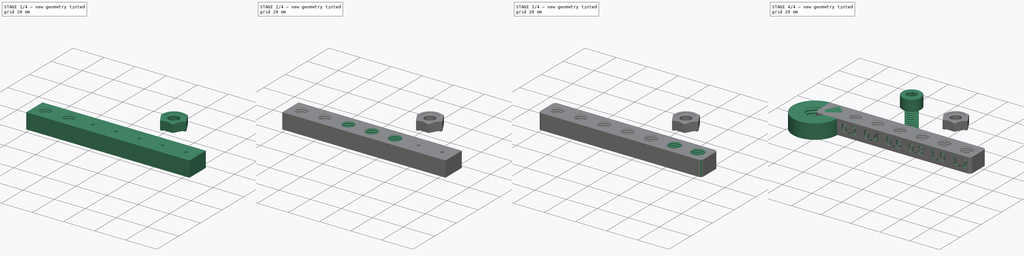
[diagram: build sequence overview — one tinted view per stage of 4, left to right]
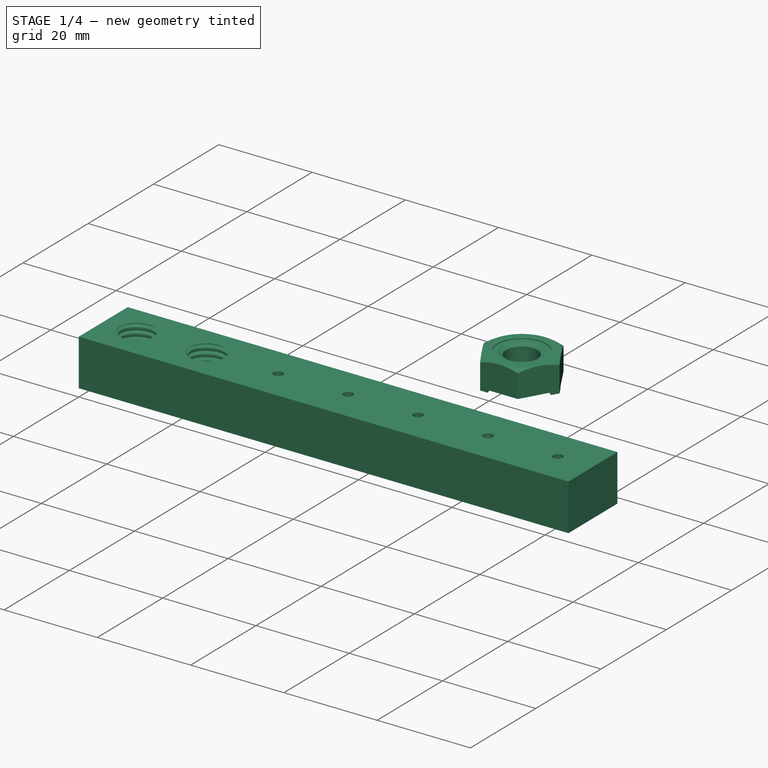
[diagram: stage 1 of 4 — iso view after this stage's code; geometry added in this stage tinted green]
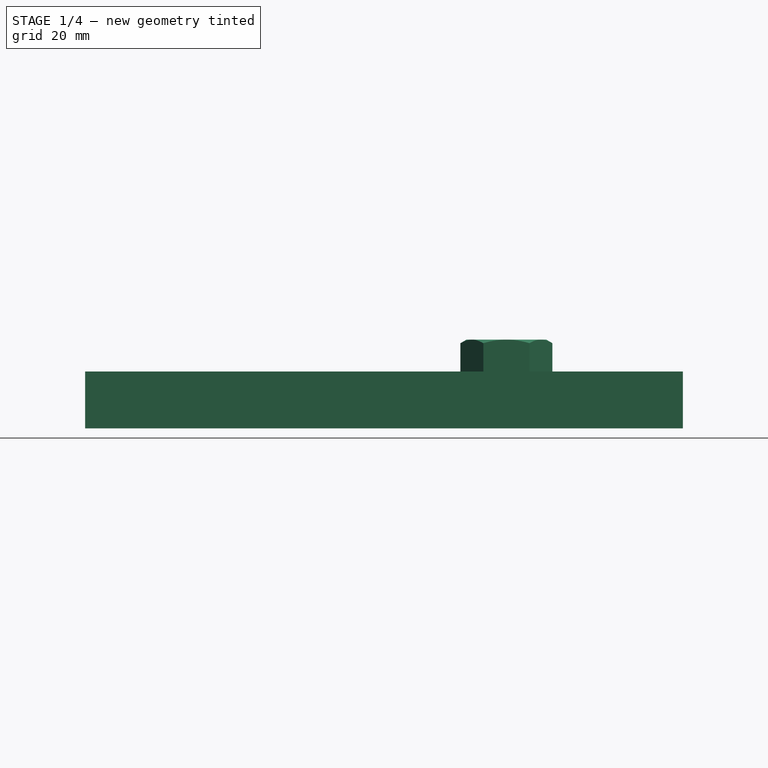
[diagram: stage 1 of 4 — front view after this stage's code; geometry added in this stage tinted green]
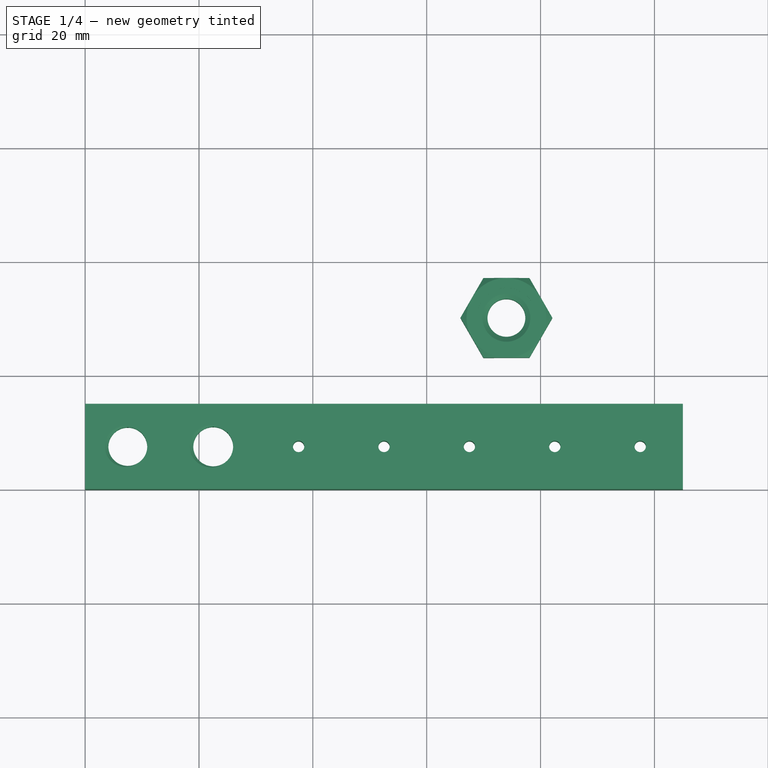
[diagram: stage 1 of 4 — top view after this stage's code; geometry added in this stage tinted green]
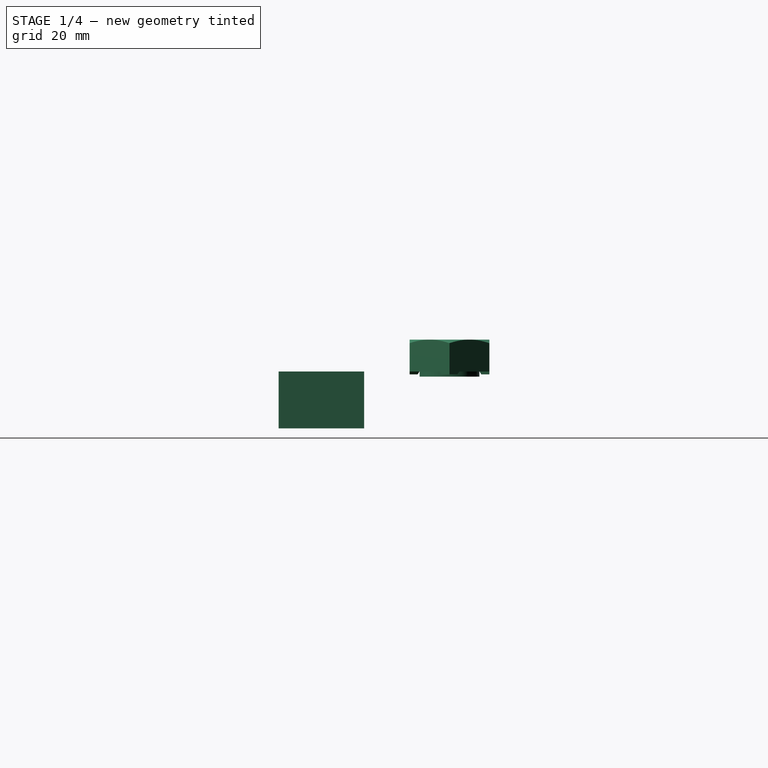
[diagram: stage 1 of 4 — right view after this stage's code; geometry added in this stage tinted green]
FCSTD DOCUMENT  (FreeCAD 1.0R39109 (Git))
Label: GevindTest
License: All rights reserved
LicenseURL: http://en.wikipedia.org/wiki/All_rights_reserved
objects: Sketcher::SketchObject×11, PartDesign::Hole×8, Part::Part2DObjectPython×7, PartDesign::Body×3, PartDesign::Pad×2, Part::FeaturePython×2, PartDesign::Fillet×1, PartDesign::Pocket×1
note: 70 computed .brp shape members not serialized (recipe doc carries the construction recipe); baked Part::Feature solids carry a one-line shape summary decoded from their .brp

FEATURE [PartDesign::Body] Body  label="UNC 1/2"
  AllowCompound = true
  Group = -> [Sketch,Pad,Sketch001,Hole]
  Origin = -> Origin
  Placement = pos=(0,45,0) rot=(0,0,1;0rad)
  Tip = -> Hole
FEATURE [Sketcher::SketchObject] Sketch002
  ArcFitTolerance = 1e-06
  AttachmentSupport = -> [XY_Plane001]
  FullyConstrained = true
  MakeInternals = false
  MapMode = 5
  expr: Constraints[10] = 15 * 7
  sketch-geometry (17):
    g0: LineSegment StartX=0 StartY=0 StartZ=0 EndX=105 EndY=0 EndZ=0
    g1: LineSegment StartX=105 StartY=0 StartZ=0 EndX=105 EndY=15 EndZ=0
    g2: LineSegment StartX=105 StartY=15 StartZ=0 EndX=0 EndY=15 EndZ=0
    g3: LineSegment StartX=0 StartY=15 StartZ=0 EndX=0 EndY=0 EndZ=0
    g4: Circle CenterX=7.5 CenterY=7.5 CenterZ=0 NormalX=0 NormalY=0 NormalZ=1 AngleXU=0 Radius=1
    g5: Circle CenterX=22.5 CenterY=7.5 CenterZ=0 NormalX=0 NormalY=0 NormalZ=1 AngleXU=0 Radius=1
    g6: Circle CenterX=37.5 CenterY=7.5 CenterZ=0 NormalX=0 NormalY=0 NormalZ=1 AngleXU=0 Radius=1
    g7: Circle CenterX=52.5 CenterY=7.5 CenterZ=0 NormalX=0 NormalY=0 NormalZ=1 AngleXU=0 Radius=1
    g8: Circle CenterX=67.5 CenterY=7.5 CenterZ=0 NormalX=0 NormalY=0 NormalZ=1 AngleXU=0 Radius=1
    g9: Circle CenterX=82.5 CenterY=7.5 CenterZ=0 NormalX=0 NormalY=0 NormalZ=1 AngleXU=0 Radius=1
    g10: Circle CenterX=97.5 CenterY=7.5 CenterZ=0 NormalX=0 NormalY=0 NormalZ=1 AngleXU=0 Radius=1
    g11: LineSegment [constr] StartX=7.5 StartY=7.5 StartZ=0 EndX=22.5 EndY=7.5 EndZ=0
    g12: LineSegment [constr] StartX=22.5 StartY=7.5 StartZ=0 EndX=37.5 EndY=7.5 EndZ=0
    g13: LineSegment [constr] StartX=37.5 StartY=7.5 StartZ=0 EndX=52.5 EndY=7.5 EndZ=0
    g14: LineSegment [constr] StartX=52.5 StartY=7.5 StartZ=0 EndX=67.5 EndY=7.5 EndZ=0
    g15: LineSegment [constr] StartX=67.5 StartY=7.5 StartZ=0 EndX=82.5 EndY=7.5 EndZ=0
    g16: LineSegment [constr] StartX=82.5 StartY=7.5 StartZ=0 EndX=97.5 EndY=7.5 EndZ=0
  constraints (43):
    c: Coincident(g0,g1)
    c: Coincident(g1,g2)
    c: Coincident(g2,g3)
    c: Coincident(g3,g0)
    c: Horizontal(g0)
    c: Horizontal(g2)
    c: Vertical(g1)
    c: Vertical(g3)
    c: Coincident(g0,g-1)
    c: DistanceY(g0,g2) = 15
    c: DistanceX(g2,g1) = 105
    c: Coincident(g11,g4)
    c: Coincident(g11,g5)
    c: Coincident(g11,g12)
    c: Coincident(g12,g6)
    c: Coincident(g12,g13)
    c: Coincident(g13,g7)
    c: Coincident(g13,g14)
    c: Coincident(g14,g8)
    c: Horizontal(g14)
    c: Coincident(g14,g15)
    c: Coincident(g15,g9)
    c: Horizontal(g15)
    c: Coincident(g15,g16)
    c: Coincident(g16,g10)
    c: Horizontal(g16)
    c: Equal(g4,g5)
    c: Equal(g5,g6)
    c: Equal(g6,g7)
    c: Equal(g7,g8)
    c: Equal(g8,g9)
    c: Equal(g9,g10)
    c: Horizontal(g4,g5)
    c: Horizontal(g5,g6)
    c: Horizontal(g6,g7)
    c: Equal(g11,g12)
    c: Equal(g12,g13)
    c: Equal(g13,g14)
    c: Equal(g14,g15)
    c: Equal(g15,g16)
    c: Symmetric(g0,g1,g7)
    c: DistanceX(g4,g5) = 15
    c: Diameter(g4) = 2
FEATURE [PartDesign::Pad] Pad001
  Direction = (0,0,1)
  Length = 10
  Length2 = 10
  Profile = -> Sketch002
  ReferenceAxis = -> Sketch002 [N_Axis]
  Refine = true
  Reversed = true
  Suppressed = false
  Type = 0
FEATURE [Sketcher::SketchObject] Sketch003
  ArcFitTolerance = 1e-06
  AttachmentSupport = -> [XY_Plane001]
  ExternalGeometry = -> [Pad001]
  FullyConstrained = false
  MakeInternals = false
  MapMode = 5
  sketch-geometry (1):
    g0: Circle CenterX=7.5 CenterY=7.5 CenterZ=0 NormalX=0 NormalY=0 NormalZ=1 AngleXU=0 Radius=3.57408
  constraints (1):
    c: Coincident(g0,g-3)
FEATURE [PartDesign::Hole] Hole001
  BaseFeature = -> Pad001
  CustomThreadClearance = 0
  Depth = 25
  DepthType = 0
  Diameter = 6.828
  DrillForDepth = false
  DrillPoint = 1
  DrillPointAngle = 118
  HoleCutCountersinkAngle = 90
  HoleCutCustomValues = false
  HoleCutDepth = 0
  HoleCutDiameter = 6.1
  HoleCutType = 0
  ModelThread = true
  Profile = -> Sketch003
  Refine = true
  Suppressed = false
  Tapered = false
  TaperedAngle = 90
  ThreadClass = 0
  ThreadDepth = 25
  ThreadDepthType = 0
  ThreadDirection = 0
  ThreadFit = 0
  ThreadSize = 16
  ThreadType = 1
  Threaded = true
  UseCustomThreadClearance = false
FEATURE [Sketcher::SketchObject] Sketch004
  ArcFitTolerance = 1e-06
  AttachmentSupport = -> [XY_Plane001]
  ExternalGeometry = -> [Hole001]
  FullyConstrained = false
  MakeInternals = false
  MapMode = 5
  sketch-geometry (1):
    g0: Circle CenterX=22.5 CenterY=7.5 CenterZ=0 NormalX=0 NormalY=0 NormalZ=1 AngleXU=0 Radius=4.73668
  constraints (1):
    c: Coincident(g0,g-3)
FEATURE [PartDesign::Hole] Hole002
  BaseFeature = -> Hole001
  CustomThreadClearance = 0.2
  Depth = 25
  DepthType = 0
  Diameter = 7
  DrillForDepth = false
  DrillPoint = 1
  DrillPointAngle = 118
  HoleCutCountersinkAngle = 90
  HoleCutCustomValues = false
  HoleCutDepth = 0
  HoleCutDiameter = 0
  HoleCutType = 0
  ModelThread = true
  Profile = -> Sketch004
  Refine = true
  Suppressed = false
  Tapered = false
  TaperedAngle = 90
  ThreadClass = 0
  ThreadDepth = 25
  ThreadDepthType = 0
  ThreadDirection = 0
  ThreadFit = 0
  ThreadSize = 16
  ThreadType = 1
  Threaded = true
  UseCustomThreadClearance = true
FEATURE [PartDesign::Body] Body001  label="M8"
  AllowCompound = true
  Group = -> [Sketch002,Pad001,Sketch003,Hole001,Sketch004,Hole002,Sketch005,Hole003,Sketch006,Hole004,Sketch007,Hole005,Sketch008,Hole006,Sketch009,Hole007,Fillet,Sketch010,Pocket]
  Origin = -> Origin001
  Tip = -> Pocket
FEATURE [Part::FeaturePython] Nut  label="M8-Nut"  # WARN: FeaturePython — macro-defined, semantics opaque (R4)
  Diameter = 5
  Invert = false
  LeftHanded = false
  MatchOuter = false
  OffsetAngle = 0
  Placement = pos=(74,30,0) rot=(0,0,1;0rad)
  Thread = false
  Type = 18
note: 7 file-system paths scrubbed to <path> (originals preserved in the JSON sidecar)
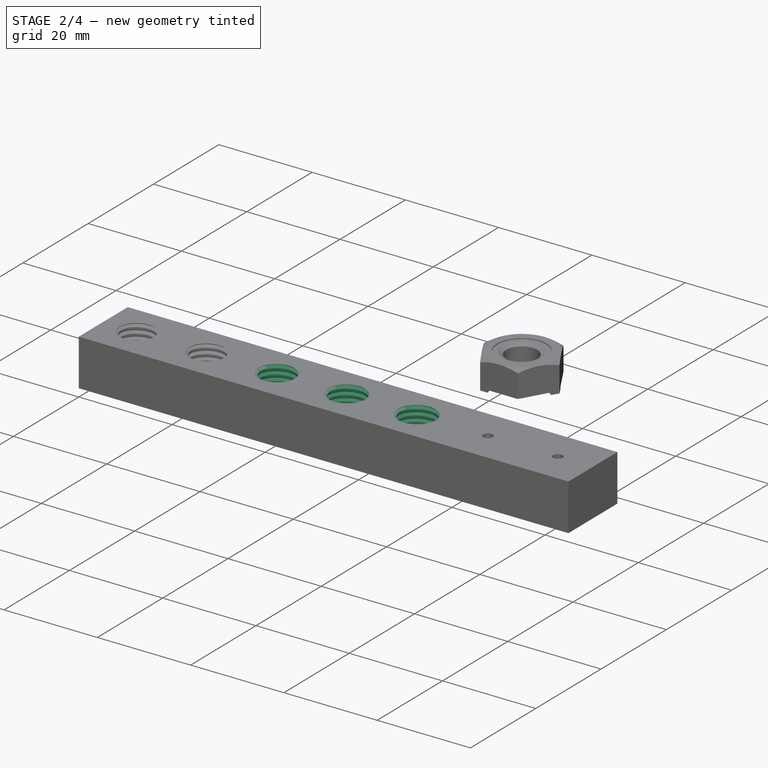
[diagram: stage 2 of 4 — iso view after this stage's code; geometry added in this stage tinted green]
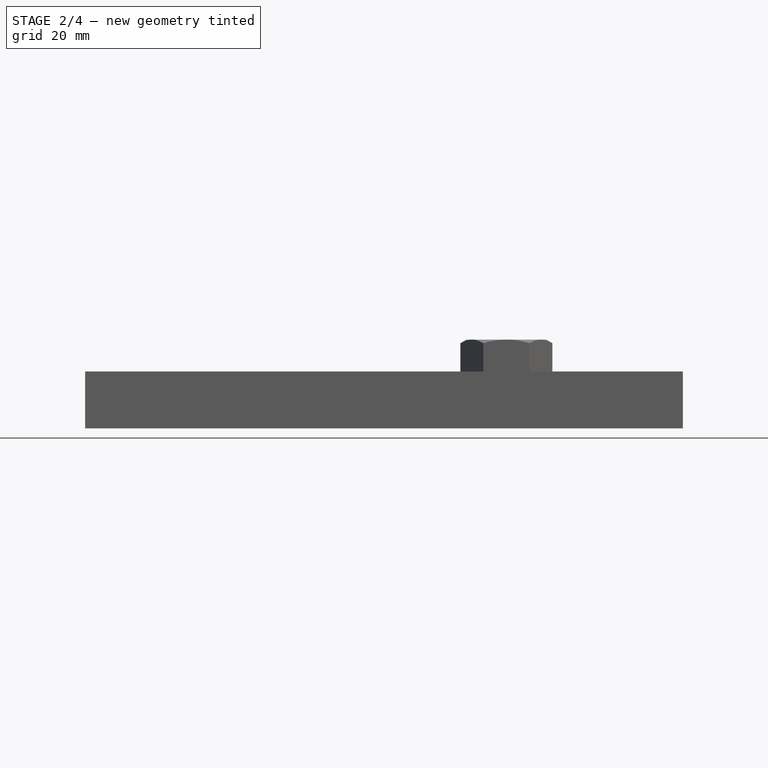
[diagram: stage 2 of 4 — front view after this stage's code; geometry added in this stage tinted green]
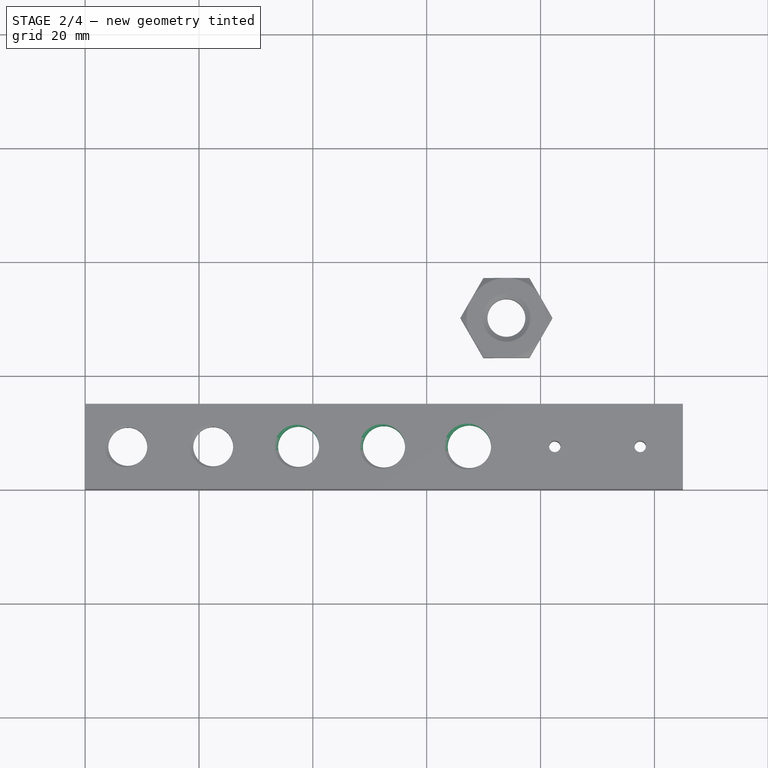
[diagram: stage 2 of 4 — top view after this stage's code; geometry added in this stage tinted green]
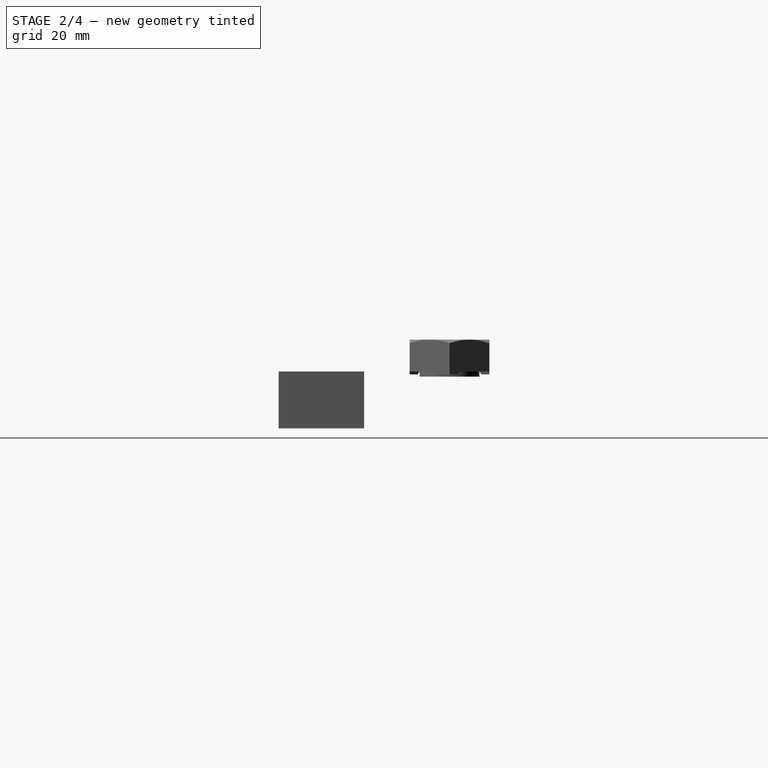
[diagram: stage 2 of 4 — right view after this stage's code; geometry added in this stage tinted green]
FEATURE [Sketcher::SketchObject] Sketch005
  ArcFitTolerance = 1e-06
  AttachmentSupport = -> [XY_Plane001]
  ExternalGeometry = -> [Hole002]
  FullyConstrained = false
  MakeInternals = false
  MapMode = 5
  sketch-geometry (1):
    g0: Circle CenterX=37.5 CenterY=7.5 CenterZ=0 NormalX=0 NormalY=0 NormalZ=1 AngleXU=0 Radius=3.93303
  constraints (1):
    c: Coincident(g0,g-3)
FEATURE [PartDesign::Hole] Hole003
  BaseFeature = -> Hole002
  CustomThreadClearance = 0.4
  Depth = 25
  DepthType = 0
  Diameter = 7.2
  DrillForDepth = false
  DrillPoint = 1
  DrillPointAngle = 118
  HoleCutCountersinkAngle = 90
  HoleCutCustomValues = false
  HoleCutDepth = 0
  HoleCutDiameter = 0
  HoleCutType = 0
  ModelThread = true
  Profile = -> Sketch005
  Refine = true
  Suppressed = false
  Tapered = false
  TaperedAngle = 90
  ThreadClass = 0
  ThreadDepth = 25
  ThreadDepthType = 0
  ThreadDirection = 0
  ThreadFit = 0
  ThreadSize = 16
  ThreadType = 1
  Threaded = true
  UseCustomThreadClearance = true
FEATURE [Sketcher::SketchObject] Sketch006
  ArcFitTolerance = 1e-06
  AttachmentSupport = -> [XY_Plane001]
  ExternalGeometry = -> [Hole003]
  FullyConstrained = false
  MakeInternals = false
  MapMode = 5
  sketch-geometry (1):
    g0: Circle CenterX=52.5 CenterY=7.5 CenterZ=0 NormalX=0 NormalY=0 NormalZ=1 AngleXU=0 Radius=4.7084
  constraints (1):
    c: Coincident(g0,g-3)
FEATURE [PartDesign::Hole] Hole004
  BaseFeature = -> Hole003
  CustomThreadClearance = 0.6
  Depth = 25
  DepthType = 0
  Diameter = 7.4
  DrillForDepth = false
  DrillPoint = 1
  DrillPointAngle = 118
  HoleCutCountersinkAngle = 90
  HoleCutCustomValues = false
  HoleCutDepth = 0
  HoleCutDiameter = 7.5
  HoleCutType = 0
  ModelThread = true
  Profile = -> Sketch006
  Refine = true
  Suppressed = false
  Tapered = false
  TaperedAngle = 90
  ThreadClass = 0
  ThreadDepth = 25
  ThreadDepthType = 0
  ThreadDirection = 0
  ThreadFit = 0
  ThreadSize = 16
  ThreadType = 1
  Threaded = true
  UseCustomThreadClearance = true
FEATURE [Sketcher::SketchObject] Sketch007
  ArcFitTolerance = 1e-06
  AttachmentSupport = -> [XY_Plane001]
  ExternalGeometry = -> [Hole004]
  FullyConstrained = false
  MakeInternals = false
  MapMode = 5
  sketch-geometry (1):
    g0: Circle CenterX=67.5 CenterY=7.5 CenterZ=0 NormalX=0 NormalY=0 NormalZ=1 AngleXU=0 Radius=3.88042
  constraints (1):
    c: Coincident(g0,g-3)
FEATURE [PartDesign::Hole] Hole005
  BaseFeature = -> Hole004
  CustomThreadClearance = 0.8
  Depth = 25
  DepthType = 0
  Diameter = 7.6
  DrillForDepth = false
  DrillPoint = 1
  DrillPointAngle = 118
  HoleCutCountersinkAngle = 90
  HoleCutCustomValues = false
  HoleCutDepth = 0
  HoleCutDiameter = 7.7
  HoleCutType = 0
  ModelThread = true
  Profile = -> Sketch007
  Refine = true
  Suppressed = false
  Tapered = false
  TaperedAngle = 90
  ThreadClass = 0
  ThreadDepth = 25
  ThreadDepthType = 0
  ThreadDirection = 0
  ThreadFit = 0
  ThreadSize = 16
  ThreadType = 1
  Threaded = true
  UseCustomThreadClearance = true
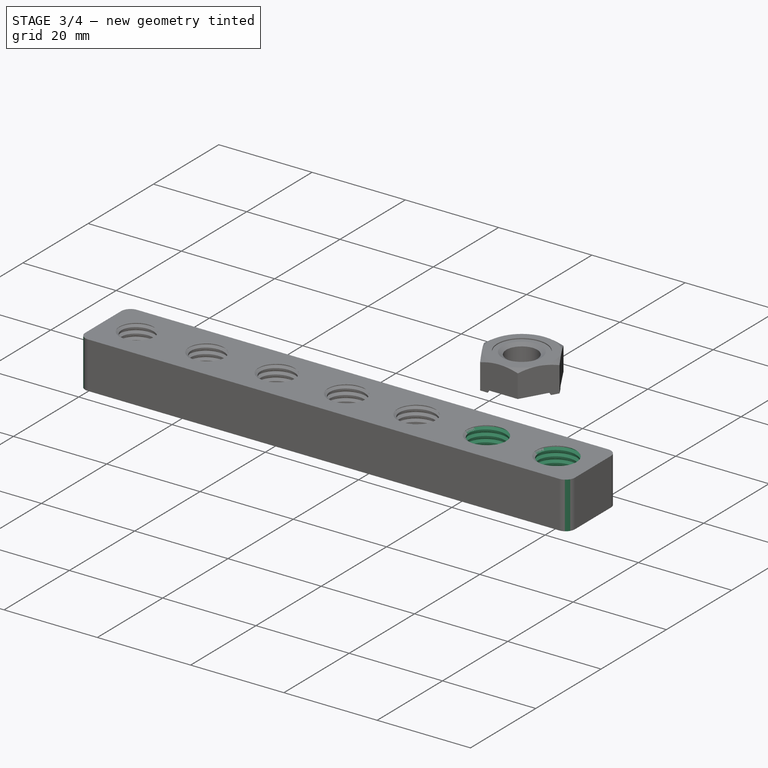
[diagram: stage 3 of 4 — iso view after this stage's code; geometry added in this stage tinted green]
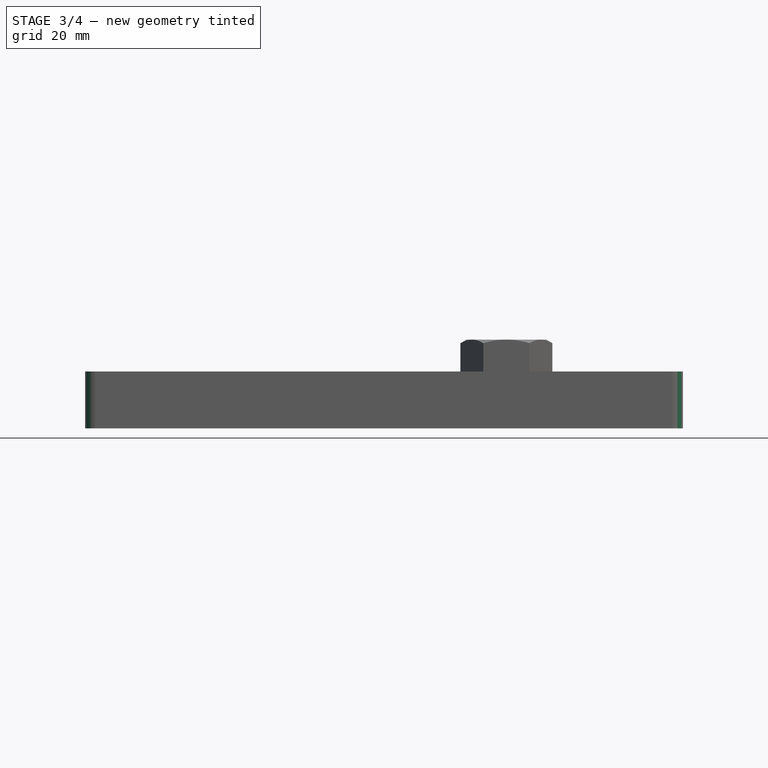
[diagram: stage 3 of 4 — front view after this stage's code; geometry added in this stage tinted green]
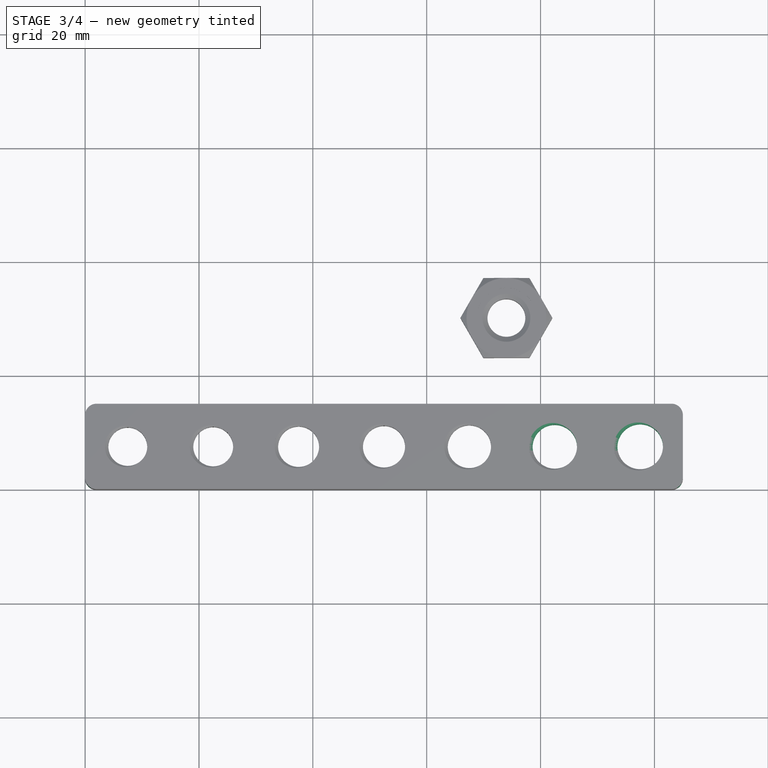
[diagram: stage 3 of 4 — top view after this stage's code; geometry added in this stage tinted green]
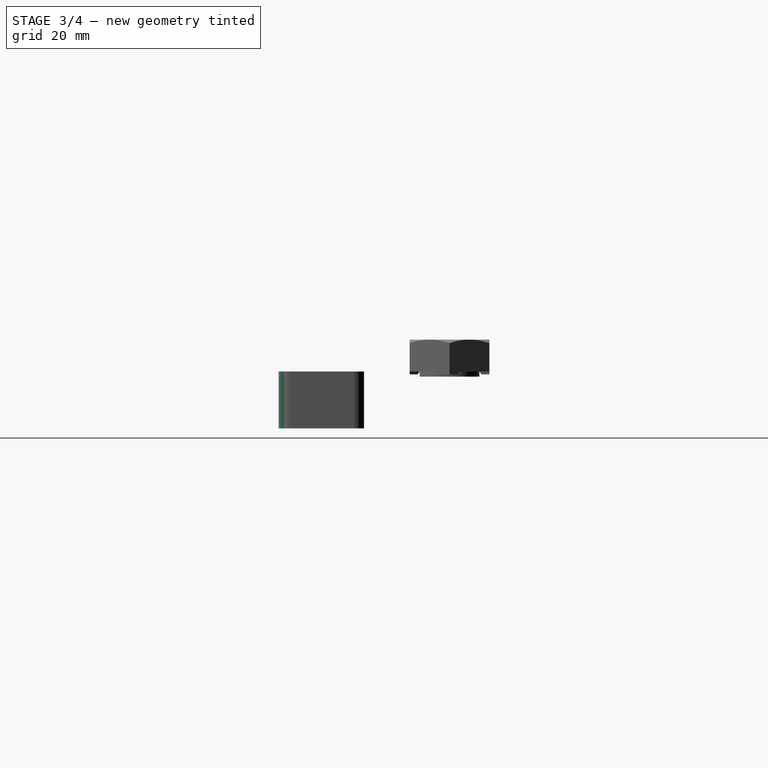
[diagram: stage 3 of 4 — right view after this stage's code; geometry added in this stage tinted green]
FEATURE [Sketcher::SketchObject] Sketch008
  ArcFitTolerance = 1e-06
  AttachmentSupport = -> [XY_Plane001]
  ExternalGeometry = -> [Hole005]
  FullyConstrained = false
  MakeInternals = false
  MapMode = 5
  sketch-geometry (1):
    g0: Circle CenterX=82.5 CenterY=7.5 CenterZ=0 NormalX=0 NormalY=0 NormalZ=1 AngleXU=0 Radius=4.1992
  constraints (1):
    c: Coincident(g0,g-3)
FEATURE [PartDesign::Hole] Hole006
  BaseFeature = -> Hole005
  CustomThreadClearance = 1
  Depth = 25
  DepthType = 0
  Diameter = 7.8
  DrillForDepth = false
  DrillPoint = 1
  DrillPointAngle = 118
  HoleCutCountersinkAngle = 90
  HoleCutCustomValues = false
  HoleCutDepth = 0
  HoleCutDiameter = 0
  HoleCutType = 0
  ModelThread = true
  Profile = -> Sketch008
  Refine = true
  Suppressed = false
  Tapered = false
  TaperedAngle = 90
  ThreadClass = 0
  ThreadDepth = 25
  ThreadDepthType = 0
  ThreadDirection = 0
  ThreadFit = 0
  ThreadSize = 16
  ThreadType = 1
  Threaded = true
  UseCustomThreadClearance = true
FEATURE [Sketcher::SketchObject] Sketch009
  ArcFitTolerance = 1e-06
  AttachmentSupport = -> [XY_Plane001]
  ExternalGeometry = -> [Hole006]
  FullyConstrained = false
  MakeInternals = false
  MapMode = 5
  sketch-geometry (1):
    g0: Circle CenterX=97.5 CenterY=7.5 CenterZ=0 NormalX=0 NormalY=0 NormalZ=1 AngleXU=0 Radius=3.85678
  constraints (1):
    c: Coincident(g0,g-3)
FEATURE [PartDesign::Hole] Hole007
  BaseFeature = -> Hole006
  CustomThreadClearance = 1.2
  Depth = 25
  DepthType = 0
  Diameter = 8
  DrillForDepth = false
  DrillPoint = 1
  DrillPointAngle = 118
  HoleCutCountersinkAngle = 90
  HoleCutCustomValues = false
  HoleCutDepth = 0
  HoleCutDiameter = 7.5
  HoleCutType = 0
  ModelThread = true
  Profile = -> Sketch009
  Refine = true
  Suppressed = false
  Tapered = false
  TaperedAngle = 90
  ThreadClass = 0
  ThreadDepth = 25
  ThreadDepthType = 0
  ThreadDirection = 0
  ThreadFit = 0
  ThreadSize = 16
  ThreadType = 1
  Threaded = true
  UseCustomThreadClearance = true
FEATURE [PartDesign::Fillet] Fillet
  Base = -> Hole007 [Edge1,Edge2,Edge8,Edge5]
  BaseFeature = -> Hole007
  Radius = 2
  Refine = true
  SupportTransform = false
  Suppressed = false
  UseAllEdges = false
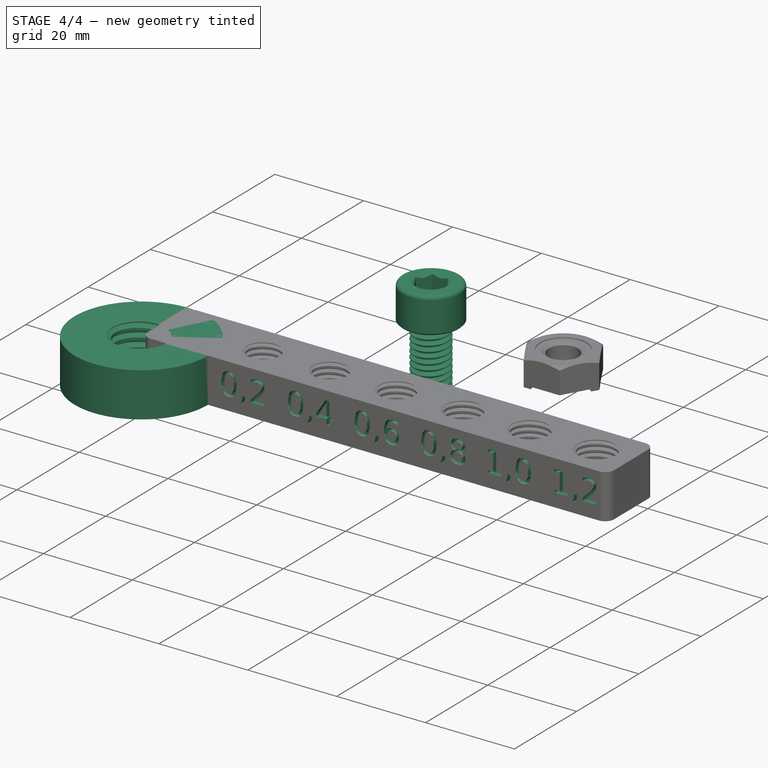
[diagram: stage 4 of 4 — iso view after this stage's code; geometry added in this stage tinted green]
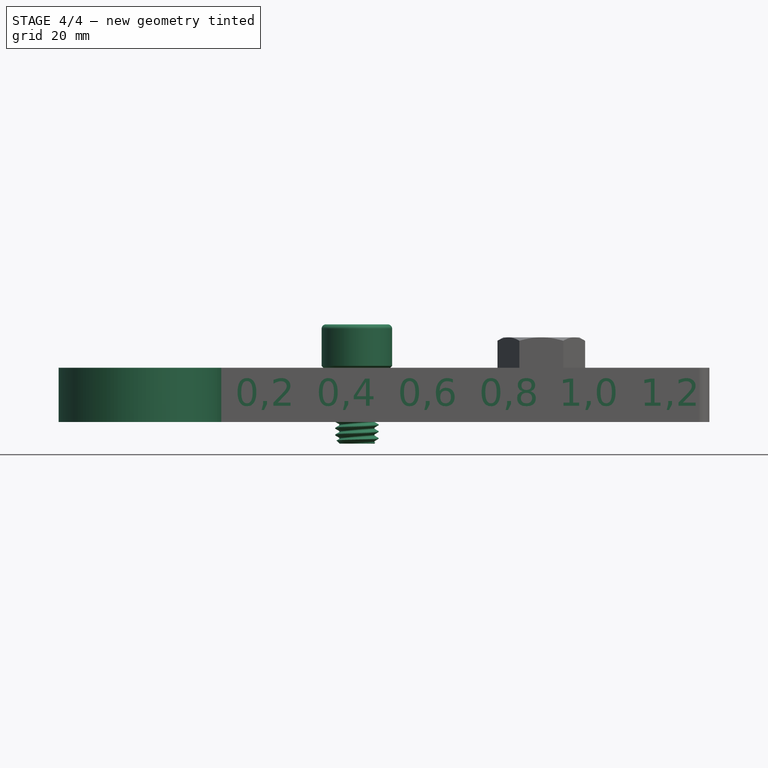
[diagram: stage 4 of 4 — front view after this stage's code; geometry added in this stage tinted green]
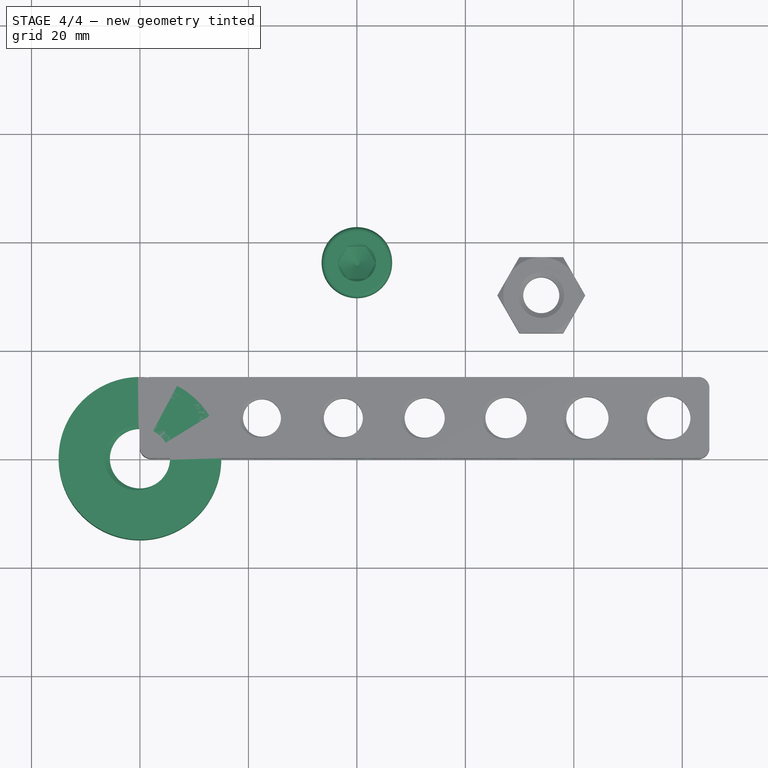
[diagram: stage 4 of 4 — top view after this stage's code; geometry added in this stage tinted green]
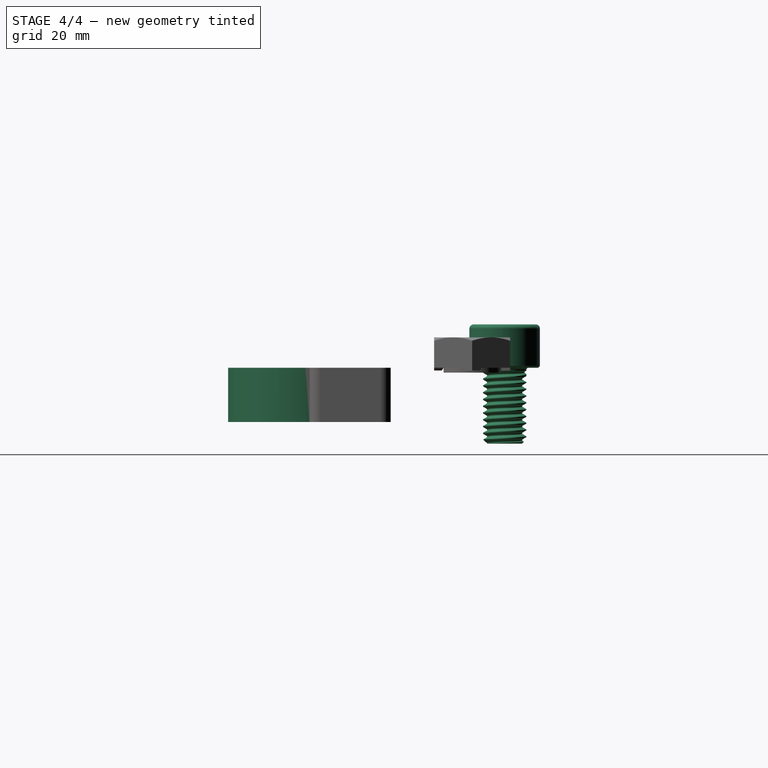
[diagram: stage 4 of 4 — right view after this stage's code; geometry added in this stage tinted green]
FEATURE [Sketcher::SketchObject] Sketch
  ArcFitTolerance = 1e-06
  AttachmentSupport = -> [XY_Plane]
  FullyConstrained = true
  MakeInternals = false
  MapMode = 5
  sketch-geometry (1):
    g0: Circle CenterX=0 CenterY=0 CenterZ=0 NormalX=0 NormalY=0 NormalZ=1 AngleXU=0 Radius=15
  constraints (2):
    c: Coincident(g0,g-1)
    c: Diameter(g0) = 30
FEATURE [PartDesign::Pad] Pad
  Direction = (0,0,1)
  Length = 10
  Length2 = 10
  Profile = -> Sketch
  ReferenceAxis = -> Sketch [N_Axis]
  Refine = true
  Reversed = true
  Suppressed = false
  Type = 0
FEATURE [Sketcher::SketchObject] Sketch001
  ArcFitTolerance = 1e-06
  AttachmentSupport = -> [XY_Plane]
  FullyConstrained = false
  MakeInternals = false
  MapMode = 5
  sketch-geometry (1):
    g0: Circle CenterX=0 CenterY=0 CenterZ=0 NormalX=0 NormalY=0 NormalZ=1 AngleXU=0 Radius=3.78394
  constraints (1):
    c: Coincident(g0,g-1)
FEATURE [PartDesign::Hole] Hole
  BaseFeature = -> Pad
  CustomThreadClearance = 0.3
  Depth = 25
  DepthType = 0
  Diameter = 11.1
  DrillForDepth = false
  DrillPoint = 1
  DrillPointAngle = 118
  HoleCutCountersinkAngle = 90
  HoleCutCustomValues = false
  HoleCutDepth = 0
  HoleCutDiameter = 6.1
  HoleCutType = 0
  ModelThread = true
  Profile = -> Sketch001
  Refine = true
  Suppressed = false
  Tapered = true
  TaperedAngle = 90
  ThreadClass = 0
  ThreadDepth = 25
  ThreadDepthType = 0
  ThreadDirection = 0
  ThreadFit = 0
  ThreadSize = 13
  ThreadType = 3
  Threaded = true
  UseCustomThreadClearance = true
FEATURE [Part::Part2DObjectPython] ShapeString  # Draft 2D object (typed FeaturePython)
  FontFile = <path>
  Fuse = false
  Justification = 6
  JustificationReference = 0
  KeepLeftMargin = false
  MakeFace = true
  ObliqueAngle = 0
  Placement = pos=(3,0,-7) rot=(1,0,0;1.5708rad)
  ScaleToSize = true
  Size = 5
  String = 0,0
  Tracking = 0
FEATURE [Part::Part2DObjectPython] ShapeString001  # Draft 2D object (typed FeaturePython)
  FontFile = <path>
  Fuse = false
  Justification = 6
  JustificationReference = 0
  KeepLeftMargin = false
  MakeFace = true
  ObliqueAngle = 0
  Placement = pos=(18,0,-7) rot=(1,0,0;1.5708rad)
  ScaleToSize = true
  Size = 5
  String = 0,2
  Tracking = 0
FEATURE [Part::Part2DObjectPython] ShapeString002  # Draft 2D object (typed FeaturePython)
  FontFile = <path>
  Fuse = false
  Justification = 6
  JustificationReference = 0
  KeepLeftMargin = false
  MakeFace = true
  ObliqueAngle = 0
  Placement = pos=(33,0,-7) rot=(1,0,0;1.5708rad)
  ScaleToSize = true
  Size = 5
  String = 0,4
  Tracking = 0
FEATURE [Part::Part2DObjectPython] ShapeString003  # Draft 2D object (typed FeaturePython)
  FontFile = <path>
  Fuse = false
  Justification = 6
  JustificationReference = 0
  KeepLeftMargin = false
  MakeFace = true
  ObliqueAngle = 0
  Placement = pos=(48,0,-7) rot=(1,0,0;1.5708rad)
  ScaleToSize = true
  Size = 5
  String = 0,6
  Tracking = 0
FEATURE [Part::Part2DObjectPython] ShapeString004  # Draft 2D object (typed FeaturePython)
  FontFile = <path>
  Fuse = false
  Justification = 6
  JustificationReference = 0
  KeepLeftMargin = false
  MakeFace = true
  ObliqueAngle = 0
  Placement = pos=(63,0,-7) rot=(1,0,0;1.5708rad)
  ScaleToSize = true
  Size = 5
  String = 0,8
  Tracking = 0
FEATURE [Part::Part2DObjectPython] ShapeString005  # Draft 2D object (typed FeaturePython)
  FontFile = <path>
  Fuse = false
  Justification = 6
  JustificationReference = 0
  KeepLeftMargin = false
  MakeFace = true
  ObliqueAngle = 0
  Placement = pos=(78,0,-7) rot=(1,0,0;1.5708rad)
  ScaleToSize = true
  Size = 5
  String = 1,0
  Tracking = 0
FEATURE [Part::Part2DObjectPython] ShapeString006  # Draft 2D object (typed FeaturePython)
  FontFile = <path>
  Fuse = false
  Justification = 6
  JustificationReference = 0
  KeepLeftMargin = false
  MakeFace = true
  ObliqueAngle = 0
  Placement = pos=(93,0,-7) rot=(1,0,0;1.5708rad)
  ScaleToSize = true
  Size = 5
  String = 1,2
  Tracking = 0
FEATURE [PartDesign::Body] Body002
  AllowCompound = true
  Origin = -> Origin002
FEATURE [Part::FeaturePython] Screw  label="M8x14-Screw"  # WARN: FeaturePython — macro-defined, semantics opaque (R4)
  Diameter = 8
  Invert = false
  LeftHanded = false
  Length = 2
  LengthCustom = 14
  MatchOuter = false
  OffsetAngle = 0
  Placement = pos=(40,36,0) rot=(0,0,1;0rad)
  Thread = true
  Type = 74
FEATURE [Sketcher::SketchObject] Sketch010
  ArcFitTolerance = 1e-06
  FullyConstrained = false
  MakeInternals = false
  Placement = pos=(0,1.6e-15,0) rot=(1,0,0;1.5708rad)
  sketch-geometry (289):
    g0: BSplineCurve PolesCount=3 KnotsCount=2 Degree=2 IsPeriodic=0
    g1: BSplineCurve PolesCount=3 KnotsCount=2 Degree=2 IsPeriodic=0
    g2: BSplineCurve PolesCount=3 KnotsCount=2 Degree=2 IsPeriodic=0
    g3: BSplineCurve PolesCount=3 KnotsCount=2 Degree=2 IsPeriodic=0
    g4: BSplineCurve PolesCount=3 KnotsCount=2 Degree=2 IsPeriodic=0
    g5: BSplineCurve PolesCount=3 KnotsCount=2 Degree=2 IsPeriodic=0
    g6: BSplineCurve PolesCount=3 KnotsCount=2 Degree=2 IsPeriodic=0
    g7: BSplineCurve PolesCount=3 KnotsCount=2 Degree=2 IsPeriodic=0
    g8: BSplineCurve PolesCount=3 KnotsCount=2 Degree=2 IsPeriodic=0
    g9: BSplineCurve PolesCount=3 KnotsCount=2 Degree=2 IsPeriodic=0
    g10: BSplineCurve PolesCount=3 KnotsCount=2 Degree=2 IsPeriodic=0
    g11: BSplineCurve PolesCount=3 KnotsCount=2 Degree=2 IsPeriodic=0
    g12: BSplineCurve PolesCount=3 KnotsCount=2 Degree=2 IsPeriodic=0
    g13: BSplineCurve PolesCount=3 KnotsCount=2 Degree=2 IsPeriodic=0
    g14: BSplineCurve PolesCount=3 KnotsCount=2 Degree=2 IsPeriodic=0
    g15: BSplineCurve PolesCount=3 KnotsCount=2 Degree=2 IsPeriodic=0
    g16: LineSegment StartX=7.70871 StartY=-6.14286 StartZ=0 EndX=8.41518 EndY=-6.14286 EndZ=0
    g17: LineSegment StartX=7.70871 StartY=-6.71719 StartZ=0 EndX=7.70871 EndY=-6.14286 EndZ=0
    g18: LineSegment StartX=7.43415 StartY=-7.78571 StartZ=0 EndX=7.70871 EndY=-6.71719 EndZ=0
    g19: LineSegment StartX=7.86607 StartY=-7.78571 StartZ=0 EndX=7.43415 EndY=-7.78571 EndZ=0
    g20: LineSegment StartX=8.41518 StartY=-6.71719 StartZ=0 EndX=7.86607 EndY=-7.78571 EndZ=0
    g21: LineSegment StartX=8.41518 StartY=-6.14286 StartZ=0 EndX=8.41518 EndY=-6.71719 EndZ=0
    g22: BSplineCurve PolesCount=3 KnotsCount=2 Degree=2 IsPeriodic=0
    g23: BSplineCurve PolesCount=3 KnotsCount=2 Degree=2 IsPeriodic=0
    g24: BSplineCurve PolesCount=3 KnotsCount=2 Degree=2 IsPeriodic=0
    g25: BSplineCurve PolesCount=3 KnotsCount=2 Degree=2 IsPeriodic=0
    g26: BSplineCurve PolesCount=3 KnotsCount=2 Degree=2 IsPeriodic=0
    g27: BSplineCurve PolesCount=3 KnotsCount=2 Degree=2 IsPeriodic=0
    g28: BSplineCurve PolesCount=3 KnotsCount=2 Degree=2 IsPeriodic=0
    g29: BSplineCurve PolesCount=3 KnotsCount=2 Degree=2 IsPeriodic=0
    g30: BSplineCurve PolesCount=3 KnotsCount=2 Degree=2 IsPeriodic=0
    g31: BSplineCurve PolesCount=3 KnotsCount=2 Degree=2 IsPeriodic=0
    g32: BSplineCurve PolesCount=3 KnotsCount=2 Degree=2 IsPeriodic=0
    g33: BSplineCurve PolesCount=3 KnotsCount=2 Degree=2 IsPeriodic=0
    g34: BSplineCurve PolesCount=3 KnotsCount=2 Degree=2 IsPeriodic=0
    g35: BSplineCurve PolesCount=3 KnotsCount=2 Degree=2 IsPeriodic=0
    g36: BSplineCurve PolesCount=3 KnotsCount=2 Degree=2 IsPeriodic=0
    g37: BSplineCurve PolesCount=3 KnotsCount=2 Degree=2 IsPeriodic=0
    g38: BSplineCurve PolesCount=3 KnotsCount=2 Degree=2 IsPeriodic=0
    g39: BSplineCurve PolesCount=3 KnotsCount=2 Degree=2 IsPeriodic=0
    g40: BSplineCurve PolesCount=3 KnotsCount=2 Degree=2 IsPeriodic=0
    g41: BSplineCurve PolesCount=3 KnotsCount=2 Degree=2 IsPeriodic=0
    g42: BSplineCurve PolesCount=3 KnotsCount=2 Degree=2 IsPeriodic=0
    g43: BSplineCurve PolesCount=3 KnotsCount=2 Degree=2 IsPeriodic=0
    g44: BSplineCurve PolesCount=3 KnotsCount=2 Degree=2 IsPeriodic=0
    g45: BSplineCurve PolesCount=3 KnotsCount=2 Degree=2 IsPeriodic=0
    g46: BSplineCurve PolesCount=3 KnotsCount=2 Degree=2 IsPeriodic=0
    g47: BSplineCurve PolesCount=3 KnotsCount=2 Degree=2 IsPeriodic=0
    g48: BSplineCurve PolesCount=3 KnotsCount=2 Degree=2 IsPeriodic=0
    g49: BSplineCurve PolesCount=3 KnotsCount=2 Degree=2 IsPeriodic=0
    g50: BSplineCurve PolesCount=3 KnotsCount=2 Degree=2 IsPeriodic=0
    g51: BSplineCurve PolesCount=3 KnotsCount=2 Degree=2 IsPeriodic=0
    g52: BSplineCurve PolesCount=3 KnotsCount=2 Degree=2 IsPeriodic=0
    g53: BSplineCurve PolesCount=3 KnotsCount=2 Degree=2 IsPeriodic=0
    g54: LineSegment StartX=22.7087 StartY=-6.14286 StartZ=0 EndX=23.4152 EndY=-6.14286 EndZ=0
    g55: LineSegment StartX=22.7087 StartY=-6.71719 StartZ=0 EndX=22.7087 EndY=-6.14286 EndZ=0
    g56: LineSegment StartX=22.4342 StartY=-7.78571 StartZ=0 EndX=22.7087 EndY=-6.71719 EndZ=0
    g57: LineSegment StartX=22.8661 StartY=-7.78571 StartZ=0 EndX=22.4342 EndY=-7.78571 EndZ=0
    g58: LineSegment StartX=23.4152 StartY=-6.71719 StartZ=0 EndX=22.8661 EndY=-7.78571 EndZ=0
    g59: LineSegment StartX=23.4152 StartY=-6.14286 StartZ=0 EndX=23.4152 EndY=-6.71719 EndZ=0
    g60: LineSegment StartX=25.4067 StartY=-6.42857 StartZ=0 EndX=27.7672 EndY=-6.42857 EndZ=0
    g61: BSplineCurve PolesCount=3 KnotsCount=2 Degree=2 IsPeriodic=0
    g62: BSplineCurve PolesCount=3 KnotsCount=2 Degree=2 IsPeriodic=0
    g63: BSplineCurve PolesCount=3 KnotsCount=2 Degree=2 IsPeriodic=0
    g64: BSplineCurve PolesCount=3 KnotsCount=2 Degree=2 IsPeriodic=0
    g65: BSplineCurve PolesCount=3 KnotsCount=2 Degree=2 IsPeriodic=0
    g66: BSplineCurve PolesCount=3 KnotsCount=2 Degree=2 IsPeriodic=0
    g67: BSplineCurve PolesCount=3 KnotsCount=2 Degree=2 IsPeriodic=0
    g68: BSplineCurve PolesCount=3 KnotsCount=2 Degree=2 IsPeriodic=0
    g69: LineSegment StartX=24.6266 StartY=-2.92857 StartZ=0 EndX=24.6266 EndY=-2.24286 EndZ=0
    g70: BSplineCurve PolesCount=3 KnotsCount=2 Degree=2 IsPeriodic=0
    g71: BSplineCurve PolesCount=3 KnotsCount=2 Degree=2 IsPeriodic=0
    g72: BSplineCurve PolesCount=3 KnotsCount=2 Degree=2 IsPeriodic=0
    g73: BSplineCurve PolesCount=3 KnotsCount=2 Degree=2 IsPeriodic=0
    g74: BSplineCurve PolesCount=3 KnotsCount=2 Degree=2 IsPeriodic=0
    g75: BSplineCurve PolesCount=3 KnotsCount=2 Degree=2 IsPeriodic=0
    g76: BSplineCurve PolesCount=3 KnotsCount=2 Degree=2 IsPeriodic=0
    g77: BSplineCurve PolesCount=3 KnotsCount=2 Degree=2 IsPeriodic=0
    g78: LineSegment StartX=24.5931 StartY=-7 StartZ=0 EndX=24.5931 EndY=-6.42857 EndZ=0
    g79: LineSegment StartX=27.7672 StartY=-7 StartZ=0 EndX=24.5931 EndY=-7 EndZ=0
    g80: LineSegment StartX=27.7672 StartY=-6.42857 StartZ=0 EndX=27.7672 EndY=-7 EndZ=0
    g81: BSplineCurve PolesCount=3 KnotsCount=2 Degree=2 IsPeriodic=0
    g82: BSplineCurve PolesCount=3 KnotsCount=2 Degree=2 IsPeriodic=0
    g83: BSplineCurve PolesCount=3 KnotsCount=2 Degree=2 IsPeriodic=0
    g84: BSplineCurve PolesCount=3 KnotsCount=2 Degree=2 IsPeriodic=0
    g85: BSplineCurve PolesCount=3 KnotsCount=2 Degree=2 IsPeriodic=0
    g86: BSplineCurve PolesCount=3 KnotsCount=2 Degree=2 IsPeriodic=0
    g87: BSplineCurve PolesCount=3 KnotsCount=2 Degree=2 IsPeriodic=0
    g88: BSplineCurve PolesCount=3 KnotsCount=2 Degree=2 IsPeriodic=0
    g89: BSplineCurve PolesCount=3 KnotsCount=2 Degree=2 IsPeriodic=0
    g90: BSplineCurve PolesCount=3 KnotsCount=2 Degree=2 IsPeriodic=0
    g91: BSplineCurve PolesCount=3 KnotsCount=2 Degree=2 IsPeriodic=0
    g92: BSplineCurve PolesCount=3 KnotsCount=2 Degree=2 IsPeriodic=0
    g93: BSplineCurve PolesCount=3 KnotsCount=2 Degree=2 IsPeriodic=0
    g94: BSplineCurve PolesCount=3 KnotsCount=2 Degree=2 IsPeriodic=0
    g95: BSplineCurve PolesCount=3 KnotsCount=2 Degree=2 IsPeriodic=0
    g96: BSplineCurve PolesCount=3 KnotsCount=2 Degree=2 IsPeriodic=0
    g97: LineSegment StartX=37.7087 StartY=-6.14286 StartZ=0 EndX=38.4152 EndY=-6.14286 EndZ=0
    g98: LineSegment StartX=37.7087 StartY=-6.71719 StartZ=0 EndX=37.7087 EndY=-6.14286 EndZ=0
    g99: LineSegment StartX=37.4342 StartY=-7.78571 StartZ=0 EndX=37.7087 EndY=-6.71719 EndZ=0
    g100: LineSegment StartX=37.8661 StartY=-7.78571 StartZ=0 EndX=37.4342 EndY=-7.78571 EndZ=0
    g101: LineSegment StartX=38.4152 StartY=-6.71719 StartZ=0 EndX=37.8661 EndY=-7.78571 EndZ=0
    g102: LineSegment StartX=38.4152 StartY=-6.14286 StartZ=0 EndX=38.4152 EndY=-6.71719 EndZ=0
    g103: LineSegment StartX=41.5049 StartY=-2 StartZ=0 EndX=42.3554 EndY=-2 EndZ=0
    g104: LineSegment StartX=39.4257 StartY=-5.1625 StartZ=0 EndX=41.5049 EndY=-2 EndZ=0
    g105: LineSegment StartX=39.4257 StartY=-5.81429 StartZ=0 EndX=39.4257 EndY=-5.1625 EndZ=0
    g106: LineSegment StartX=41.6824 StartY=-5.81429 StartZ=0 EndX=39.4257 EndY=-5.81429 EndZ=0
    g107: LineSegment StartX=41.6824 StartY=-7 StartZ=0 EndX=41.6824 EndY=-5.81429 EndZ=0
    g108: LineSegment StartX=42.3554 StartY=-7 StartZ=0 EndX=41.6824 EndY=-7 EndZ=0
    g109: LineSegment StartX=42.3554 StartY=-5.81429 StartZ=0 EndX=42.3554 EndY=-7 EndZ=0
    g110: LineSegment StartX=43.0685 StartY=-5.81429 StartZ=0 EndX=42.3554 EndY=-5.81429 EndZ=0
    g111: LineSegment StartX=43.0685 StartY=-5.25714 StartZ=0 EndX=43.0685 EndY=-5.81429 EndZ=0
    g112: LineSegment StartX=42.3554 StartY=-5.25714 StartZ=0 EndX=43.0685 EndY=-5.25714 EndZ=0
    g113: LineSegment StartX=42.3554 StartY=-2 StartZ=0 EndX=42.3554 EndY=-5.25714 EndZ=0
    g114: LineSegment StartX=41.6824 StartY=-2.58906 StartZ=0 EndX=39.9748 EndY=-5.25714 EndZ=0
    g115: LineSegment StartX=41.6824 StartY=-5.25714 StartZ=0 EndX=41.6824 EndY=-2.58906 EndZ=0
    g116: LineSegment StartX=39.9748 StartY=-5.25714 StartZ=0 EndX=41.6824 EndY=-5.25714 EndZ=0
    g117: BSplineCurve PolesCount=3 KnotsCount=2 Degree=2 IsPeriodic=0
    g118: BSplineCurve PolesCount=3 KnotsCount=2 Degree=2 IsPeriodic=0
    g119: BSplineCurve PolesCount=3 KnotsCount=2 Degree=2 IsPeriodic=0
    g120: BSplineCurve PolesCount=3 KnotsCount=2 Degree=2 IsPeriodic=0
    g121: BSplineCurve PolesCount=3 KnotsCount=2 Degree=2 IsPeriodic=0
    g122: BSplineCurve PolesCount=3 KnotsCount=2 Degree=2 IsPeriodic=0
    g123: BSplineCurve PolesCount=3 KnotsCount=2 Degree=2 IsPeriodic=0
    g124: BSplineCurve PolesCount=3 KnotsCount=2 Degree=2 IsPeriodic=0
    g125: BSplineCurve PolesCount=3 KnotsCount=2 Degree=2 IsPeriodic=0
    g126: BSplineCurve PolesCount=3 KnotsCount=2 Degree=2 IsPeriodic=0
    g127: BSplineCurve PolesCount=3 KnotsCount=2 Degree=2 IsPeriodic=0
    g128: BSplineCurve PolesCount=3 KnotsCount=2 Degree=2 IsPeriodic=0
    g129: BSplineCurve PolesCount=3 KnotsCount=2 Degree=2 IsPeriodic=0
    g130: BSplineCurve PolesCount=3 KnotsCount=2 Degree=2 IsPeriodic=0
    g131: BSplineCurve PolesCount=3 KnotsCount=2 Degree=2 IsPeriodic=0
    g132: BSplineCurve PolesCount=3 KnotsCount=2 Degree=2 IsPeriodic=0
    g133: LineSegment StartX=52.7087 StartY=-6.14286 StartZ=0 EndX=53.4152 EndY=-6.14286 EndZ=0
    g134: LineSegment StartX=52.7087 StartY=-6.71719 StartZ=0 EndX=52.7087 EndY=-6.14286 EndZ=0
    g135: LineSegment StartX=52.4342 StartY=-7.78571 StartZ=0 EndX=52.7087 EndY=-6.71719 EndZ=0
    g136: LineSegment StartX=52.8661 StartY=-7.78571 StartZ=0 EndX=52.4342 EndY=-7.78571 EndZ=0
    g137: LineSegment StartX=53.4152 StartY=-6.71719 StartZ=0 EndX=52.8661 EndY=-7.78571 EndZ=0
    g138: LineSegment StartX=53.4152 StartY=-6.14286 StartZ=0 EndX=53.4152 EndY=-6.71719 EndZ=0
    g139: LineSegment StartX=57.6969 StartY=-2.11429 StartZ=0 EndX=57.6969 EndY=-2.72857 EndZ=0
    g140: BSplineCurve PolesCount=3 KnotsCount=2 Degree=2 IsPeriodic=0
    g141: BSplineCurve PolesCount=3 KnotsCount=2 Degree=2 IsPeriodic=0
    g142: BSplineCurve PolesCount=3 KnotsCount=2 Degree=2 IsPeriodic=0
    g143: BSplineCurve PolesCount=3 KnotsCount=2 Degree=2 IsPeriodic=0
    g144: BSplineCurve PolesCount=3 KnotsCount=2 Degree=2 IsPeriodic=0
    g145: BSplineCurve PolesCount=3 KnotsCount=2 Degree=2 IsPeriodic=0
    g146: BSplineCurve PolesCount=3 KnotsCount=2 Degree=2 IsPeriodic=0
    g147: BSplineCurve PolesCount=3 KnotsCount=2 Degree=2 IsPeriodic=0
    g148: BSplineCurve PolesCount=3 KnotsCount=2 Degree=2 IsPeriodic=0
    g149: BSplineCurve PolesCount=3 KnotsCount=2 Degree=2 IsPeriodic=0
    g150: BSplineCurve PolesCount=3 KnotsCount=2 Degree=2 IsPeriodic=0
    g151: BSplineCurve PolesCount=3 KnotsCount=2 Degree=2 IsPeriodic=0
    g152: BSplineCurve PolesCount=3 KnotsCount=2 Degree=2 IsPeriodic=0
    g153: BSplineCurve PolesCount=3 KnotsCount=2 Degree=2 IsPeriodic=0
    g154: BSplineCurve PolesCount=3 KnotsCount=2 Degree=2 IsPeriodic=0
    g155: BSplineCurve PolesCount=3 KnotsCount=2 Degree=2 IsPeriodic=0
    g156: BSplineCurve PolesCount=3 KnotsCount=2 Degree=2 IsPeriodic=0
    g157: BSplineCurve PolesCount=3 KnotsCount=2 Degree=2 IsPeriodic=0
    g158: BSplineCurve PolesCount=3 KnotsCount=2 Degree=2 IsPeriodic=0
    g159: BSplineCurve PolesCount=3 KnotsCount=2 Degree=2 IsPeriodic=0
    g160: BSplineCurve PolesCount=3 KnotsCount=2 Degree=2 IsPeriodic=0
    g161: BSplineCurve PolesCount=3 KnotsCount=2 Degree=2 IsPeriodic=0
    g162: BSplineCurve PolesCount=3 KnotsCount=2 Degree=2 IsPeriodic=0
    g163: BSplineCurve PolesCount=3 KnotsCount=2 Degree=2 IsPeriodic=0
    g164: BSplineCurve PolesCount=3 KnotsCount=2 Degree=2 IsPeriodic=0
    g165: BSplineCurve PolesCount=3 KnotsCount=2 Degree=2 IsPeriodic=0
    g166: BSplineCurve PolesCount=3 KnotsCount=2 Degree=2 IsPeriodic=0
    g167: BSplineCurve PolesCount=3 KnotsCount=2 Degree=2 IsPeriodic=0
    g168: BSplineCurve PolesCount=3 KnotsCount=2 Degree=2 IsPeriodic=0
    g169: BSplineCurve PolesCount=3 KnotsCount=2 Degree=2 IsPeriodic=0
    g170: BSplineCurve PolesCount=3 KnotsCount=2 Degree=2 IsPeriodic=0
    g171: BSplineCurve PolesCount=3 KnotsCount=2 Degree=2 IsPeriodic=0
    g172: BSplineCurve PolesCount=3 KnotsCount=2 Degree=2 IsPeriodic=0
    g173: BSplineCurve PolesCount=3 KnotsCount=2 Degree=2 IsPeriodic=0
    g174: BSplineCurve PolesCount=3 KnotsCount=2 Degree=2 IsPeriodic=0
    g175: BSplineCurve PolesCount=3 KnotsCount=2 Degree=2 IsPeriodic=0
    g176: BSplineCurve PolesCount=3 KnotsCount=2 Degree=2 IsPeriodic=0
    g177: BSplineCurve PolesCount=3 KnotsCount=2 Degree=2 IsPeriodic=0
    g178: BSplineCurve PolesCount=3 KnotsCount=2 Degree=2 IsPeriodic=0
    g179: BSplineCurve PolesCount=3 KnotsCount=2 Degree=2 IsPeriodic=0
    g180: LineSegment StartX=67.7087 StartY=-6.14286 StartZ=0 EndX=68.4152 EndY=-6.14286 EndZ=0
    g181: LineSegment StartX=67.7087 StartY=-6.71719 StartZ=0 EndX=67.7087 EndY=-6.14286 EndZ=0
    g182: LineSegment StartX=67.4342 StartY=-7.78571 StartZ=0 EndX=67.7087 EndY=-6.71719 EndZ=0
    g183: LineSegment StartX=67.8661 StartY=-7.78571 StartZ=0 EndX=67.4342 EndY=-7.78571 EndZ=0
    g184: LineSegment StartX=68.4152 StartY=-6.71719 StartZ=0 EndX=67.8661 EndY=-7.78571 EndZ=0
    g185: LineSegment StartX=68.4152 StartY=-6.14286 StartZ=0 EndX=68.4152 EndY=-6.71719 EndZ=0
    g186: BSplineCurve PolesCount=3 KnotsCount=2 Degree=2 IsPeriodic=0
    g187: BSplineCurve PolesCount=3 KnotsCount=2 Degree=2 IsPeriodic=0
    g188: BSplineCurve PolesCount=3 KnotsCount=2 Degree=2 IsPeriodic=0
    g189: BSplineCurve PolesCount=3 KnotsCount=2 Degree=2 IsPeriodic=0
    g190: BSplineCurve PolesCount=3 KnotsCount=2 Degree=2 IsPeriodic=0
    g191: BSplineCurve PolesCount=3 KnotsCount=2 Degree=2 IsPeriodic=0
    g192: BSplineCurve PolesCount=3 KnotsCount=2 Degree=2 IsPeriodic=0
    g193: BSplineCurve PolesCount=3 KnotsCount=2 Degree=2 IsPeriodic=0
    g194: BSplineCurve PolesCount=3 KnotsCount=2 Degree=2 IsPeriodic=0
    g195: BSplineCurve PolesCount=3 KnotsCount=2 Degree=2 IsPeriodic=0
    g196: BSplineCurve PolesCount=3 KnotsCount=2 Degree=2 IsPeriodic=0
    g197: BSplineCurve PolesCount=3 KnotsCount=2 Degree=2 IsPeriodic=0
    g198: BSplineCurve PolesCount=3 KnotsCount=2 Degree=2 IsPeriodic=0
    g199: BSplineCurve PolesCount=3 KnotsCount=2 Degree=2 IsPeriodic=0
    g200: BSplineCurve PolesCount=3 KnotsCount=2 Degree=2 IsPeriodic=0
    g201: BSplineCurve PolesCount=3 KnotsCount=2 Degree=2 IsPeriodic=0
    g202: BSplineCurve PolesCount=3 KnotsCount=2 Degree=2 IsPeriodic=0
    g203: BSplineCurve PolesCount=3 KnotsCount=2 Degree=2 IsPeriodic=0
    g204: BSplineCurve PolesCount=3 KnotsCount=2 Degree=2 IsPeriodic=0
    g205: BSplineCurve PolesCount=3 KnotsCount=2 Degree=2 IsPeriodic=0
    g206: BSplineCurve PolesCount=3 KnotsCount=2 Degree=2 IsPeriodic=0
    g207: BSplineCurve PolesCount=3 KnotsCount=2 Degree=2 IsPeriodic=0
    g208: BSplineCurve PolesCount=3 KnotsCount=2 Degree=2 IsPeriodic=0
    g209: BSplineCurve PolesCount=3 KnotsCount=2 Degree=2 IsPeriodic=0
    g210: BSplineCurve PolesCount=3 KnotsCount=2 Degree=2 IsPeriodic=0
    g211: BSplineCurve PolesCount=3 KnotsCount=2 Degree=2 IsPeriodic=0
    g212: BSplineCurve PolesCount=3 KnotsCount=2 Degree=2 IsPeriodic=0
    g213: BSplineCurve PolesCount=3 KnotsCount=2 Degree=2 IsPeriodic=0
    g214: BSplineCurve PolesCount=3 KnotsCount=2 Degree=2 IsPeriodic=0
    g215: BSplineCurve PolesCount=3 KnotsCount=2 Degree=2 IsPeriodic=0
    g216: BSplineCurve PolesCount=3 KnotsCount=2 Degree=2 IsPeriodic=0
    g217: BSplineCurve PolesCount=3 KnotsCount=2 Degree=2 IsPeriodic=0
    g218: LineSegment StartX=78.0971 StartY=-6.42857 StartZ=0 EndX=79.202 EndY=-6.42857 EndZ=0
    g219: LineSegment StartX=78.0971 StartY=-7 StartZ=0 EndX=78.0971 EndY=-6.42857 EndZ=0
    g220: LineSegment StartX=80.9766 StartY=-7 StartZ=0 EndX=78.0971 EndY=-7 EndZ=0
    g221: LineSegment StartX=80.9766 StartY=-6.42857 StartZ=0 EndX=80.9766 EndY=-7 EndZ=0
    g222: LineSegment StartX=79.8717 StartY=-6.42857 StartZ=0 EndX=80.9766 EndY=-6.42857 EndZ=0
    g223: LineSegment StartX=79.8717 StartY=-2 StartZ=0 EndX=79.8717 EndY=-6.42857 EndZ=0
    g224: LineSegment StartX=79.1953 StartY=-2 StartZ=0 EndX=79.8717 EndY=-2 EndZ=0
    g225: LineSegment StartX=78 StartY=-2.24286 StartZ=0 EndX=79.1953 EndY=-2 EndZ=0
    g226: LineSegment StartX=78 StartY=-2.85714 StartZ=0 EndX=78 EndY=-2.24286 EndZ=0
    g227: LineSegment StartX=79.202 StartY=-2.61429 StartZ=0 EndX=78 EndY=-2.85714 EndZ=0
    g228: LineSegment StartX=79.202 StartY=-6.42857 StartZ=0 EndX=79.202 EndY=-2.61429 EndZ=0
    g229: LineSegment StartX=82.4074 StartY=-6.14286 StartZ=0 EndX=83.1138 EndY=-6.14286 EndZ=0
    g230: LineSegment StartX=82.4074 StartY=-6.71719 StartZ=0 EndX=82.4074 EndY=-6.14286 EndZ=0
    g231: LineSegment StartX=82.1328 StartY=-7.78571 StartZ=0 EndX=82.4074 EndY=-6.71719 EndZ=0
    g232: LineSegment StartX=82.5647 StartY=-7.78571 StartZ=0 EndX=82.1328 EndY=-7.78571 EndZ=0
    g233: LineSegment StartX=83.1138 StartY=-6.71719 StartZ=0 EndX=82.5647 EndY=-7.78571 EndZ=0
    g234: LineSegment StartX=83.1138 StartY=-6.14286 StartZ=0 EndX=83.1138 EndY=-6.71719 EndZ=0
    g235: BSplineCurve PolesCount=3 KnotsCount=2 Degree=2 IsPeriodic=0
    g236: BSplineCurve PolesCount=3 KnotsCount=2 Degree=2 IsPeriodic=0
    g237: BSplineCurve PolesCount=3 KnotsCount=2 Degree=2 IsPeriodic=0
    g238: BSplineCurve PolesCount=3 KnotsCount=2 Degree=2 IsPeriodic=0
    g239: BSplineCurve PolesCount=3 KnotsCount=2 Degree=2 IsPeriodic=0
    g240: BSplineCurve PolesCount=3 KnotsCount=2 Degree=2 IsPeriodic=0
    g241: BSplineCurve PolesCount=3 KnotsCount=2 Degree=2 IsPeriodic=0
    g242: BSplineCurve PolesCount=3 KnotsCount=2 Degree=2 IsPeriodic=0
    g243: BSplineCurve PolesCount=3 KnotsCount=2 Degree=2 IsPeriodic=0
    g244: BSplineCurve PolesCount=3 KnotsCount=2 Degree=2 IsPeriodic=0
    g245: BSplineCurve PolesCount=3 KnotsCount=2 Degree=2 IsPeriodic=0
    g246: BSplineCurve PolesCount=3 KnotsCount=2 Degree=2 IsPeriodic=0
    g247: BSplineCurve PolesCount=3 KnotsCount=2 Degree=2 IsPeriodic=0
    g248: BSplineCurve PolesCount=3 KnotsCount=2 Degree=2 IsPeriodic=0
    g249: BSplineCurve PolesCount=3 KnotsCount=2 Degree=2 IsPeriodic=0
    g250: BSplineCurve PolesCount=3 KnotsCount=2 Degree=2 IsPeriodic=0
    g251: LineSegment StartX=93.0971 StartY=-6.42857 StartZ=0 EndX=94.202 EndY=-6.42857 EndZ=0
    g252: LineSegment StartX=93.0971 StartY=-7 StartZ=0 EndX=93.0971 EndY=-6.42857 EndZ=0
    g253: LineSegment StartX=95.9766 StartY=-7 StartZ=0 EndX=93.0971 EndY=-7 EndZ=0
    g254: LineSegment StartX=95.9766 StartY=-6.42857 StartZ=0 EndX=95.9766 EndY=-7 EndZ=0
    g255: LineSegment StartX=94.8717 StartY=-6.42857 StartZ=0 EndX=95.9766 EndY=-6.42857 EndZ=0
    g256: LineSegment StartX=94.8717 StartY=-2 StartZ=0 EndX=94.8717 EndY=-6.42857 EndZ=0
    g257: LineSegment StartX=94.1953 StartY=-2 StartZ=0 EndX=94.8717 EndY=-2 EndZ=0
    g258: LineSegment StartX=93 StartY=-2.24286 StartZ=0 EndX=94.1953 EndY=-2 EndZ=0
    g259: LineSegment StartX=93 StartY=-2.85714 StartZ=0 EndX=93 EndY=-2.24286 EndZ=0
    g260: LineSegment StartX=94.202 StartY=-2.61429 StartZ=0 EndX=93 EndY=-2.85714 EndZ=0
    g261: LineSegment StartX=94.202 StartY=-6.42857 StartZ=0 EndX=94.202 EndY=-2.61429 EndZ=0
    g262: LineSegment StartX=97.4074 StartY=-6.14286 StartZ=0 EndX=98.1138 EndY=-6.14286 EndZ=0
    g263: LineSegment StartX=97.4074 StartY=-6.71719 StartZ=0 EndX=97.4074 EndY=-6.14286 EndZ=0
    g264: LineSegment StartX=97.1328 StartY=-7.78571 StartZ=0 EndX=97.4074 EndY=-6.71719 EndZ=0
    g265: LineSegment StartX=97.5647 StartY=-7.78571 StartZ=0 EndX=97.1328 EndY=-7.78571 EndZ=0
    g266: LineSegment StartX=98.1138 StartY=-6.71719 StartZ=0 EndX=97.5647 EndY=-7.78571 EndZ=0
    g267: LineSegment StartX=98.1138 StartY=-6.14286 StartZ=0 EndX=98.1138 EndY=-6.71719 EndZ=0
    g268: LineSegment StartX=100.105 StartY=-6.42857 StartZ=0 EndX=102.466 EndY=-6.42857 EndZ=0
    g269: BSplineCurve PolesCount=3 KnotsCount=2 Degree=2 IsPeriodic=0
    g270: BSplineCurve PolesCount=3 KnotsCount=2 Degree=2 IsPeriodic=0
    g271: BSplineCurve PolesCount=3 KnotsCount=2 Degree=2 IsPeriodic=0
    g272: BSplineCurve PolesCount=3 KnotsCount=2 Degree=2 IsPeriodic=0
    g273: BSplineCurve PolesCount=3 KnotsCount=2 Degree=2 IsPeriodic=0
    g274: BSplineCurve PolesCount=3 KnotsCount=2 Degree=2 IsPeriodic=0
    g275: BSplineCurve PolesCount=3 KnotsCount=2 Degree=2 IsPeriodic=0
    g276: BSplineCurve PolesCount=3 KnotsCount=2 Degree=2 IsPeriodic=0
    g277: LineSegment StartX=99.3252 StartY=-2.92857 StartZ=0 EndX=99.3252 EndY=-2.24286 EndZ=0
    g278: BSplineCurve PolesCount=3 KnotsCount=2 Degree=2 IsPeriodic=0
    g279: BSplineCurve PolesCount=3 KnotsCount=2 Degree=2 IsPeriodic=0
    g280: BSplineCurve PolesCount=3 KnotsCount=2 Degree=2 IsPeriodic=0
    g281: BSplineCurve PolesCount=3 KnotsCount=2 Degree=2 IsPeriodic=0
    g282: BSplineCurve PolesCount=3 KnotsCount=2 Degree=2 IsPeriodic=0
    g283: BSplineCurve PolesCount=3 KnotsCount=2 Degree=2 IsPeriodic=0
    g284: BSplineCurve PolesCount=3 KnotsCount=2 Degree=2 IsPeriodic=0
    g285: BSplineCurve PolesCount=3 KnotsCount=2 Degree=2 IsPeriodic=0
    g286: LineSegment StartX=99.2917 StartY=-7 StartZ=0 EndX=99.2917 EndY=-6.42857 EndZ=0
    g287: LineSegment StartX=102.466 StartY=-7 StartZ=0 EndX=99.2917 EndY=-7 EndZ=0
    g288: LineSegment StartX=102.466 StartY=-6.42857 StartZ=0 EndX=102.466 EndY=-7 EndZ=0
  constraints (358):
    c: Coincident(g0,g1)
    c: Coincident(g1,g2)
    c: Coincident(g2,g3)
    c: Coincident(g3,g4)
    c: Coincident(g4,g5)
    c: Coincident(g5,g6)
    c: Coincident(g6,g7)
    c: Coincident(g7,g0)
    c: Coincident(g8,g9)
    c: Coincident(g9,g10)
    c: Coincident(g10,g11)
    c: Coincident(g11,g12)
    c: Coincident(g12,g13)
    c: Coincident(g13,g14)
    c: Coincident(g14,g15)
    c: Coincident(g15,g8)
    c: Horizontal(g16)
    c: Coincident(g16,g17)
    c: Vertical(g17)
    c: Coincident(g17,g18)
    c: Coincident(g18,g19)
    c: Horizontal(g19)
    c: Coincident(g19,g20)
    c: Coincident(g20,g21)
    c: Vertical(g21)
    c: Coincident(g21,g16)
    c: Coincident(g22,g23)
    c: Coincident(g23,g24)
    c: Coincident(g24,g25)
    c: Coincident(g25,g26)
    c: Coincident(g26,g27)
    c: Coincident(g27,g28)
    c: Coincident(g28,g29)
    c: Coincident(g29,g22)
    c: Coincident(g30,g31)
    c: Coincident(g31,g32)
    c: Coincident(g32,g33)
    c: Coincident(g33,g34)
    c: Coincident(g34,g35)
    c: Coincident(g35,g36)
    c: Coincident(g36,g37)
    c: Coincident(g37,g30)
    c: Coincident(g38,g39)
    c: Coincident(g39,g40)
    c: Coincident(g40,g41)
    c: Coincident(g41,g42)
    c: Coincident(g42,g43)
    c: Coincident(g43,g44)
    c: Coincident(g44,g45)
    c: Coincident(g45,g38)
    c: Coincident(g46,g47)
    c: Coincident(g47,g48)
    c: Coincident(g48,g49)
    c: Coincident(g49,g50)
    c: Coincident(g50,g51)
    c: Coincident(g51,g52)
    c: Coincident(g52,g53)
    c: Coincident(g53,g46)
    c: Horizontal(g54)
    c: Coincident(g54,g55)
    c: Vertical(g55)
    c: Coincident(g55,g56)
    c: Coincident(g56,g57)
    c: Horizontal(g57)
    c: Coincident(g57,g58)
    c: Coincident(g58,g59)
    c: Vertical(g59)
    c: Coincident(g59,g54)
    c: Horizontal(g60)
    c: Coincident(g60,g61)
    c: Coincident(g61,g62)
    c: Coincident(g62,g63)
    c: Coincident(g63,g64)
    c: Coincident(g64,g65)
    c: Coincident(g65,g66)
    c: Coincident(g66,g67)
    c: Coincident(g67,g68)
    c: Coincident(g68,g69)
    c: Vertical(g69)
    c: Coincident(g69,g70)
    c: Coincident(g70,g71)
    c: Coincident(g71,g72)
    c: Coincident(g72,g73)
    c: Coincident(g73,g74)
    c: Coincident(g74,g75)
    c: Coincident(g75,g76)
    c: Coincident(g76,g77)
    c: Coincident(g77,g78)
    c: Vertical(g78)
    c: Coincident(g78,g79)
    c: Horizontal(g79)
    c: Coincident(g79,g80)
    c: Vertical(g80)
    c: Coincident(g80,g60)
    c: Coincident(g81,g82)
    c: Coincident(g82,g83)
    c: Coincident(g83,g84)
    c: Coincident(g84,g85)
    c: Coincident(g85,g86)
    c: Coincident(g86,g87)
    c: Coincident(g87,g88)
    c: Coincident(g88,g81)
    c: Coincident(g89,g90)
    c: Coincident(g90,g91)
    c: Coincident(g91,g92)
    c: Coincident(g92,g93)
    c: Coincident(g93,g94)
    c: Coincident(g94,g95)
    c: Coincident(g95,g96)
    c: Coincident(g96,g89)
    c: Horizontal(g97)
    c: Coincident(g97,g98)
    c: Vertical(g98)
    c: Coincident(g98,g99)
    c: Coincident(g99,g100)
    c: Horizontal(g100)
    c: Coincident(g100,g101)
    c: Coincident(g101,g102)
    c: Vertical(g102)
    c: Coincident(g102,g97)
    c: Horizontal(g103)
    c: Coincident(g103,g104)
    c: Coincident(g104,g105)
    c: Vertical(g105)
    c: Coincident(g105,g106)
    c: Horizontal(g106)
    c: Coincident(g106,g107)
    c: Vertical(g107)
    c: Coincident(g107,g108)
    c: Horizontal(g108)
    c: Coincident(g108,g109)
    c: Vertical(g109)
    c: Coincident(g109,g110)
    c: Horizontal(g110)
    c: Coincident(g110,g111)
    c: Vertical(g111)
    c: Coincident(g111,g112)
    c: Horizontal(g112)
    c: Coincident(g112,g113)
    c: Vertical(g113)
    c: Coincident(g113,g103)
    c: Coincident(g114,g115)
    c: Vertical(g115)
    c: Coincident(g115,g116)
    c: Horizontal(g116)
    c: Coincident(g116,g114)
    c: Coincident(g117,g118)
    c: Coincident(g118,g119)
    c: Coincident(g119,g120)
    c: Coincident(g120,g121)
    c: Coincident(g121,g122)
    c: Coincident(g122,g123)
    c: Coincident(g123,g124)
    c: Coincident(g124,g117)
    c: Coincident(g125,g126)
    c: Coincident(g126,g127)
    c: Coincident(g127,g128)
    c: Coincident(g128,g129)
    c: Coincident(g129,g130)
    c: Coincident(g130,g131)
    c: Coincident(g131,g132)
    c: Coincident(g132,g125)
    c: Horizontal(g133)
    c: Coincident(g133,g134)
    c: Vertical(g134)
    c: Coincident(g134,g135)
    c: Coincident(g135,g136)
    c: Horizontal(g136)
    c: Coincident(g136,g137)
    c: Coincident(g137,g138)
    c: Vertical(g138)
    c: Coincident(g138,g133)
    c: Vertical(g139)
    c: Coincident(g139,g140)
    c: Coincident(g140,g141)
    c: Coincident(g141,g142)
    c: Coincident(g142,g143)
    c: Coincident(g143,g144)
    c: Coincident(g144,g145)
    c: Coincident(g145,g146)
    c: Coincident(g146,g147)
    c: Coincident(g147,g148)
    c: Coincident(g148,g149)
    c: Coincident(g149,g150)
    c: Coincident(g150,g151)
    c: Coincident(g151,g152)
    c: Coincident(g152,g153)
    c: Coincident(g153,g154)
    c: Coincident(g154,g155)
    c: Coincident(g155,g139)
    c: Coincident(g156,g157)
    c: Coincident(g157,g158)
    c: Coincident(g158,g159)
    c: Coincident(g159,g160)
    c: Coincident(g160,g161)
    c: Coincident(g161,g162)
    c: Coincident(g162,g163)
    c: Coincident(g163,g156)
    c: Coincident(g164,g165)
    c: Coincident(g165,g166)
    c: Coincident(g166,g167)
    c: Coincident(g167,g168)
    c: Coincident(g168,g169)
    c: Coincident(g169,g170)
    c: Coincident(g170,g171)
    c: Coincident(g171,g164)
    c: Coincident(g172,g173)
    c: Coincident(g173,g174)
    c: Coincident(g174,g175)
    c: Coincident(g175,g176)
    c: Coincident(g176,g177)
    c: Coincident(g177,g178)
    c: Coincident(g178,g179)
    c: Coincident(g179,g172)
    c: Horizontal(g180)
    c: Coincident(g180,g181)
    c: Vertical(g181)
    c: Coincident(g181,g182)
    c: Coincident(g182,g183)
    c: Horizontal(g183)
    c: Coincident(g183,g184)
    c: Coincident(g184,g185)
    c: Vertical(g185)
    c: Coincident(g185,g180)
    c: Coincident(g186,g187)
    c: Coincident(g187,g188)
    c: Coincident(g188,g189)
    c: Coincident(g189,g190)
    c: Coincident(g190,g191)
    c: Coincident(g191,g192)
    c: Coincident(g192,g193)
    c: Coincident(g193,g194)
    c: Coincident(g194,g195)
    c: Coincident(g195,g196)
    c: Coincident(g196,g197)
    c: Coincident(g197,g198)
    c: Coincident(g198,g199)
    c: Coincident(g199,g200)
    c: Coincident(g200,g201)
    c: Coincident(g201,g186)
    c: Coincident(g202,g203)
    c: Coincident(g203,g204)
    c: Coincident(g204,g205)
    c: Coincident(g205,g206)
    c: Coincident(g206,g207)
    c: Coincident(g207,g208)
    c: Coincident(g208,g209)
    c: Coincident(g209,g202)
    c: Coincident(g210,g211)
    c: Coincident(g211,g212)
    c: Coincident(g212,g213)
    c: Coincident(g213,g214)
    c: Coincident(g214,g215)
    c: Coincident(g215,g216)
    c: Coincident(g216,g217)
    c: Coincident(g217,g210)
    c: Horizontal(g218)
    c: Coincident(g218,g219)
    c: Vertical(g219)
    c: Coincident(g219,g220)
    c: Horizontal(g220)
    c: Coincident(g220,g221)
    c: Vertical(g221)
    c: Coincident(g221,g222)
    c: Horizontal(g222)
    c: Coincident(g222,g223)
    c: Vertical(g223)
    c: Coincident(g223,g224)
    c: Horizontal(g224)
    c: Coincident(g224,g225)
    c: Coincident(g225,g226)
    c: Vertical(g226)
    c: Coincident(g226,g227)
    c: Coincident(g227,g228)
    c: Vertical(g228)
    c: Coincident(g228,g218)
    c: Horizontal(g229)
    c: Coincident(g229,g230)
    c: Vertical(g230)
    c: Coincident(g230,g231)
    c: Coincident(g231,g232)
    c: Horizontal(g232)
    c: Coincident(g232,g233)
    c: Coincident(g233,g234)
    c: Vertical(g234)
    c: Coincident(g234,g229)
    c: Coincident(g235,g236)
    c: Coincident(g236,g237)
    c: Coincident(g237,g238)
    c: Coincident(g238,g239)
    c: Coincident(g239,g240)
    c: Coincident(g240,g241)
    c: Coincident(g241,g242)
    c: Coincident(g242,g235)
    c: Coincident(g243,g244)
    c: Coincident(g244,g245)
    c: Coincident(g245,g246)
    c: Coincident(g246,g247)
    c: Coincident(g247,g248)
    c: Coincident(g248,g249)
    c: Coincident(g249,g250)
    c: Coincident(g250,g243)
    c: Horizontal(g251)
    c: Coincident(g251,g252)
    c: Vertical(g252)
    c: Coincident(g252,g253)
    c: Horizontal(g253)
    c: Coincident(g253,g254)
    c: Vertical(g254)
    c: Coincident(g254,g255)
    c: Horizontal(g255)
    c: Coincident(g255,g256)
    c: Vertical(g256)
    c: Coincident(g256,g257)
    c: Horizontal(g257)
    c: Coincident(g257,g258)
    c: Coincident(g258,g259)
    c: Vertical(g259)
    c: Coincident(g259,g260)
    c: Coincident(g260,g261)
    c: Vertical(g261)
    c: Coincident(g261,g251)
    c: Horizontal(g262)
    c: Coincident(g262,g263)
    c: Vertical(g263)
    c: Coincident(g263,g264)
    c: Coincident(g264,g265)
    c: Horizontal(g265)
    c: Coincident(g265,g266)
    c: Coincident(g266,g267)
    c: Vertical(g267)
    c: Coincident(g267,g262)
    c: Horizontal(g268)
    c: Coincident(g268,g269)
    c: Coincident(g269,g270)
    c: Coincident(g270,g271)
    c: Coincident(g271,g272)
    c: Coincident(g272,g273)
    c: Coincident(g273,g274)
    c: Coincident(g274,g275)
    c: Coincident(g275,g276)
    c: Coincident(g276,g277)
    c: Vertical(g277)
    c: Coincident(g277,g278)
    c: Coincident(g278,g279)
    c: Coincident(g279,g280)
    c: Coincident(g280,g281)
    c: Coincident(g281,g282)
    c: Coincident(g282,g283)
    c: Coincident(g283,g284)
    c: Coincident(g284,g285)
    c: Coincident(g285,g286)
    c: Vertical(g286)
    c: Coincident(g286,g287)
    c: Horizontal(g287)
    c: Coincident(g287,g288)
    c: Vertical(g288)
    c: Coincident(g288,g268)
FEATURE [PartDesign::Pocket] Pocket
  BaseFeature = -> Fillet
  Direction = (0,1,-2e-16)
  Length = 1
  Length2 = 5
  Profile = -> Sketch010
  ReferenceAxis = -> Sketch010 [N_Axis]
  Refine = true
  Suppressed = false
  Type = 0
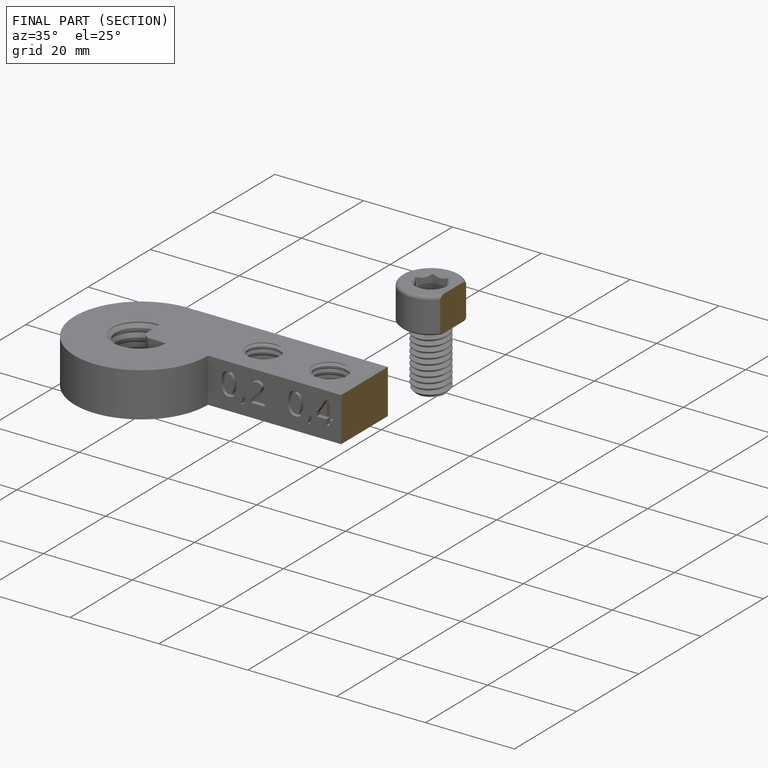
[diagram: finished part — half-section view (interior)]
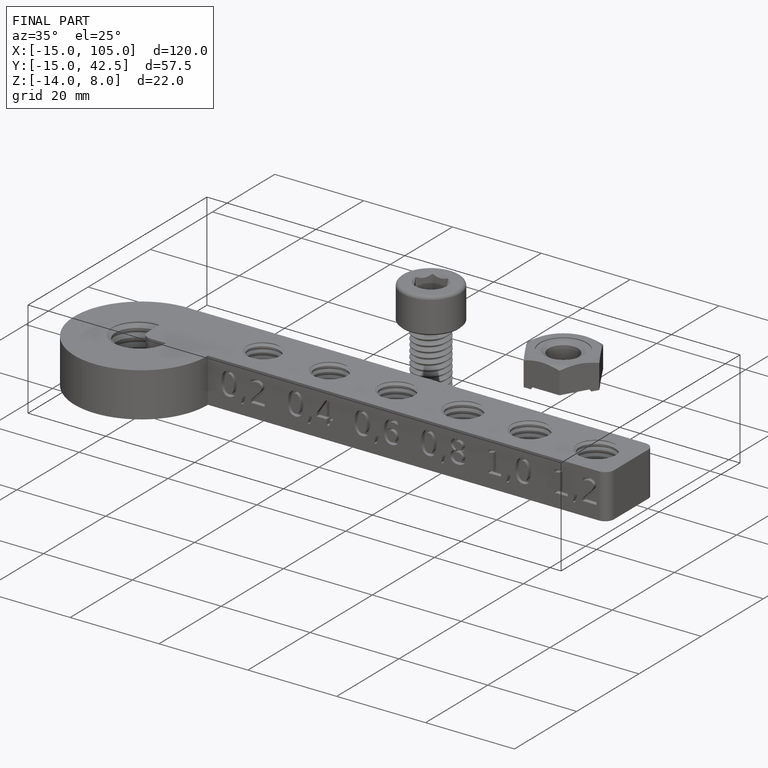
[diagram: finished part — iso view with bounding-box wireframe]
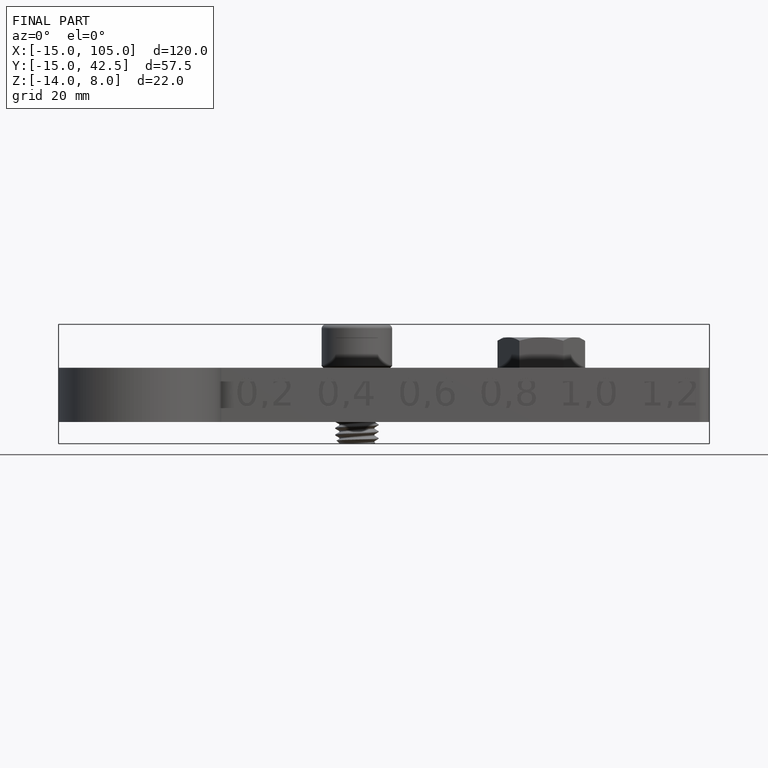
[diagram: finished part — front view with bounding-box wireframe]
